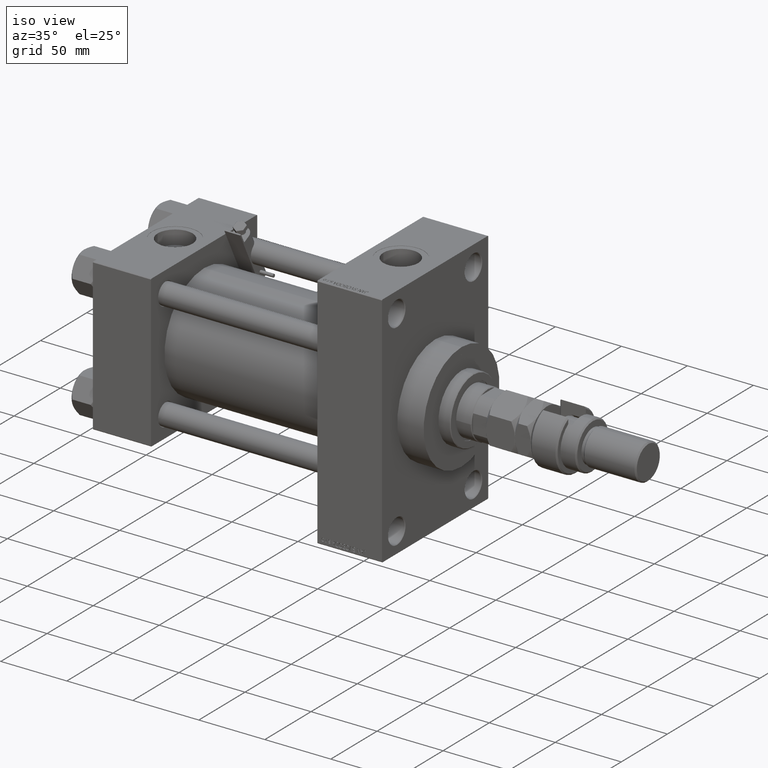
[diagram: clean part render]
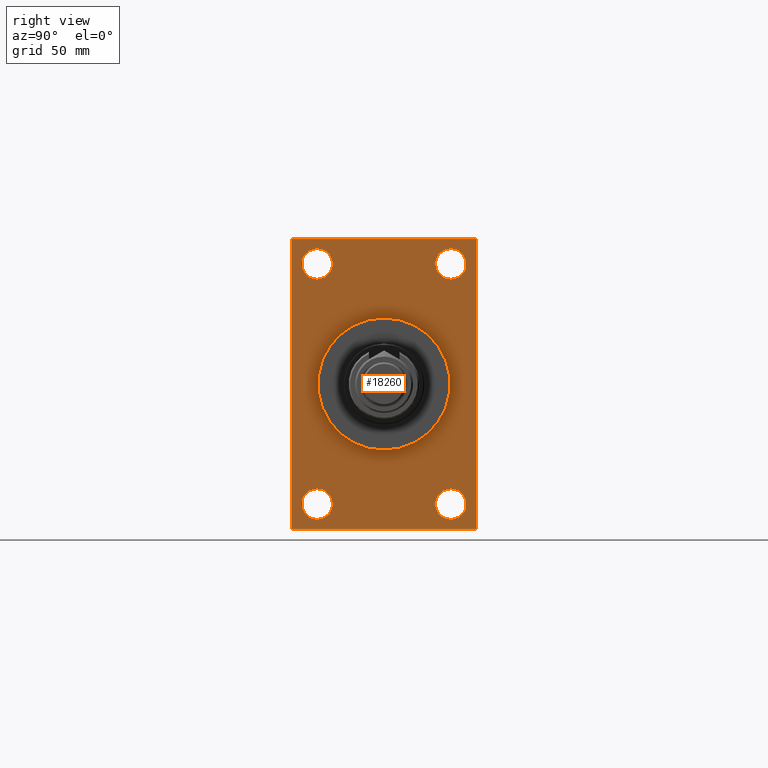
[diagram: tour spotlight — one face highlighted and labeled with its STEP entity id]
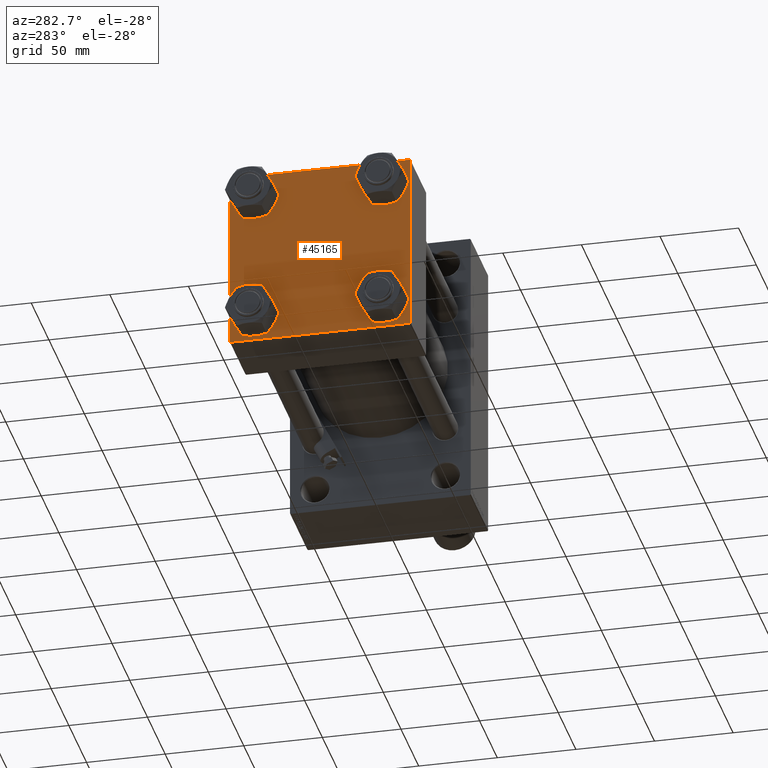
[diagram: tour spotlight — one face highlighted and labeled with its STEP entity id]
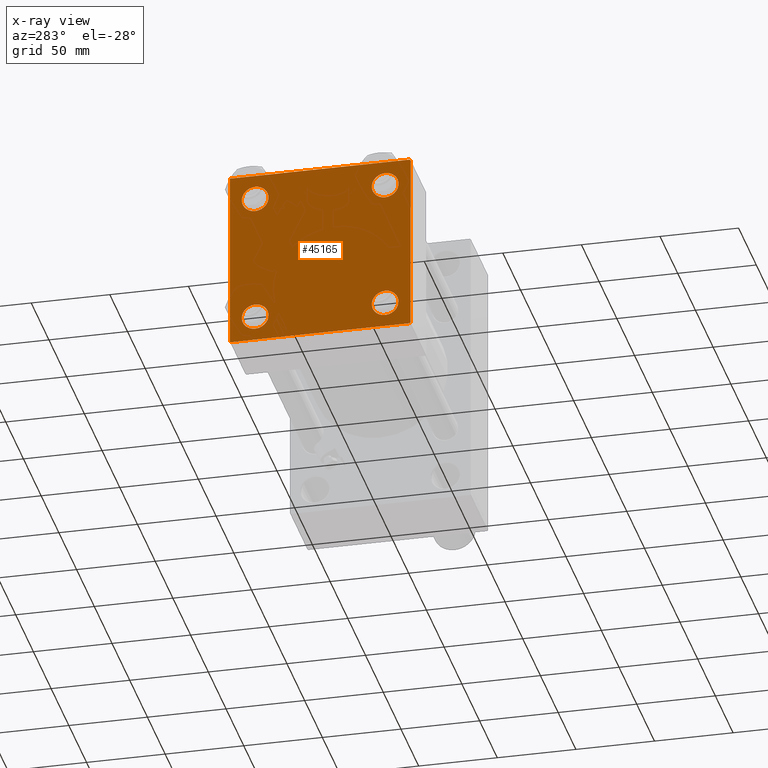
[diagram: x-ray of the same camera — body ghosted, this tour face saturated]
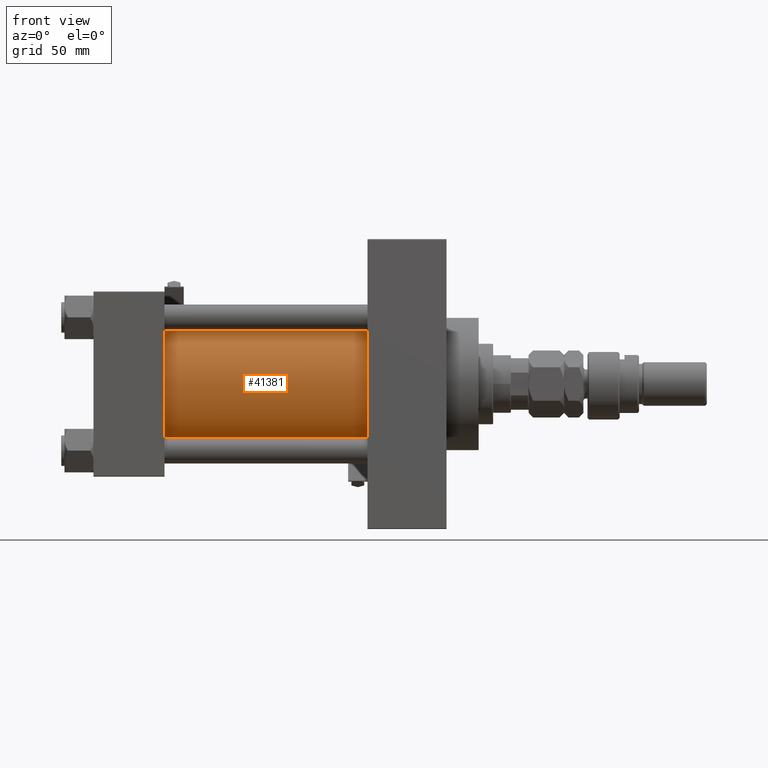
[diagram: tour spotlight — one face highlighted and labeled with its STEP entity id]
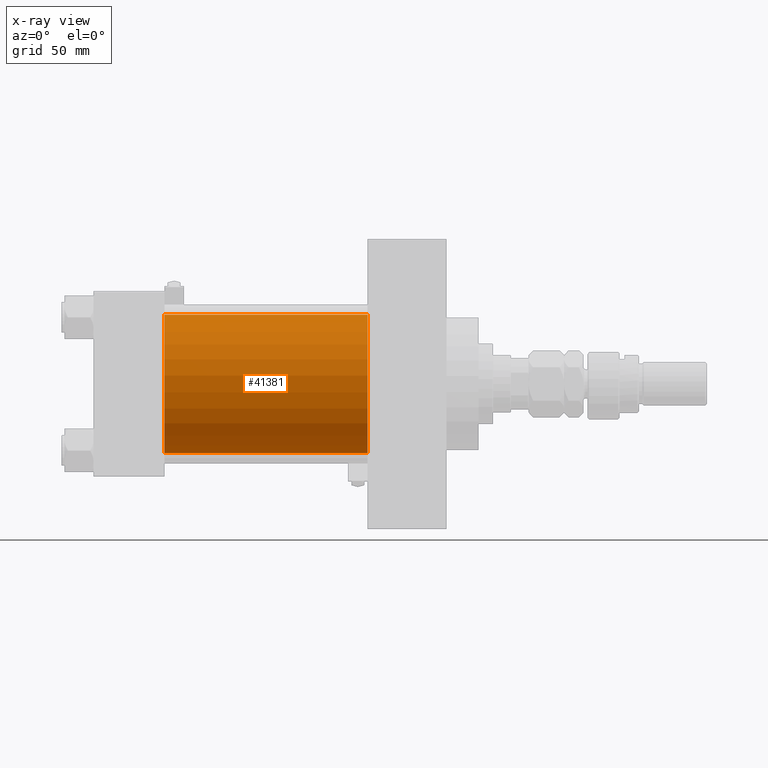
[diagram: x-ray of the same camera — body ghosted, this tour face saturated]
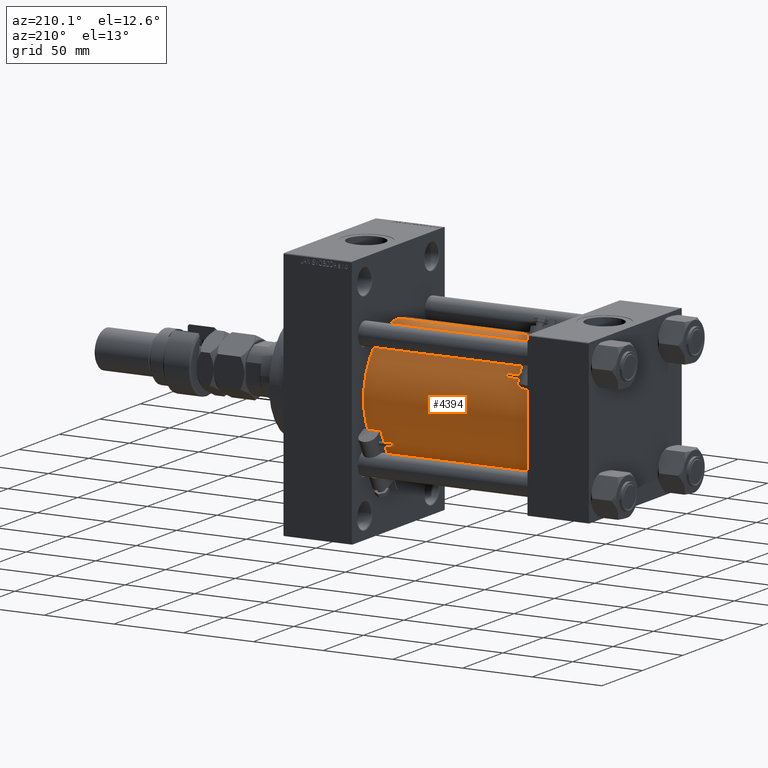
[diagram: tour spotlight — one face highlighted and labeled with its STEP entity id]
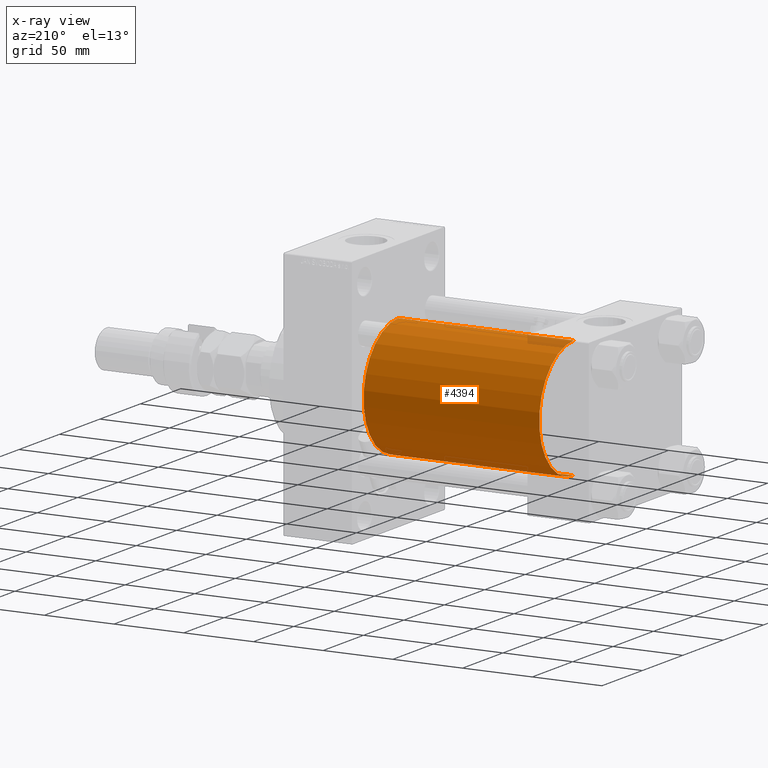
[diagram: x-ray of the same camera — body ghosted, this tour face saturated]
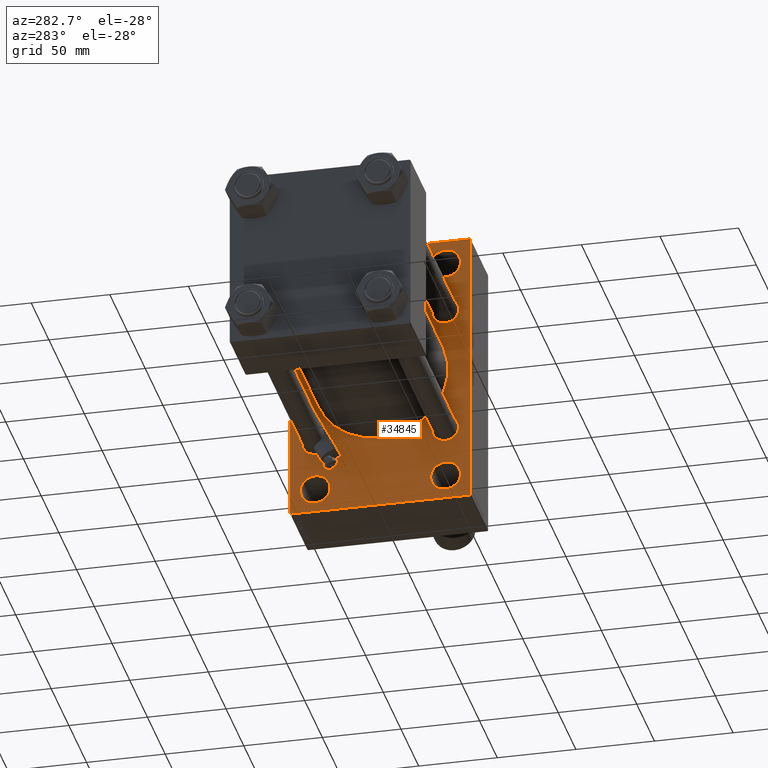
[diagram: tour spotlight — one face highlighted and labeled with its STEP entity id]
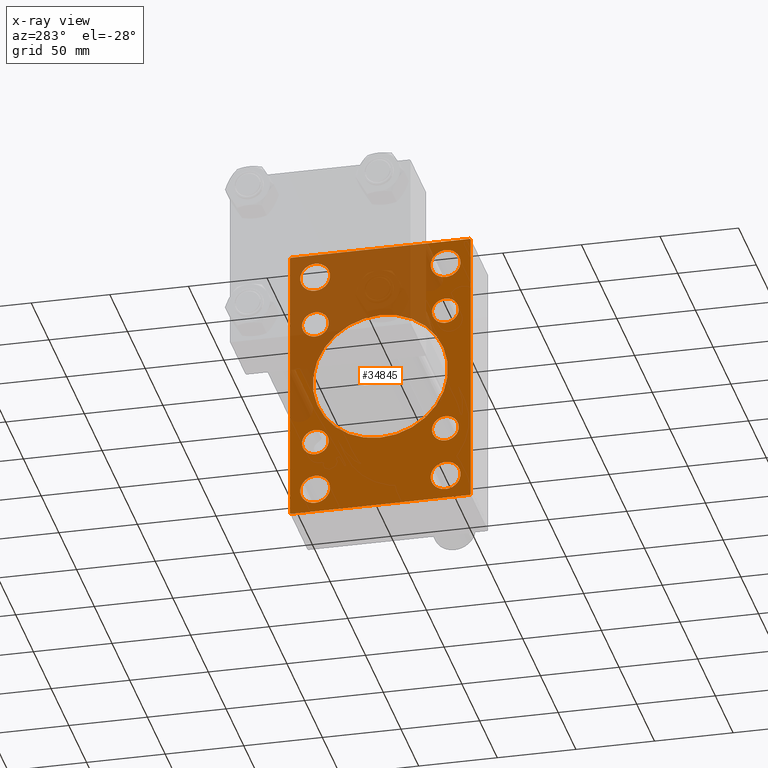
[diagram: x-ray of the same camera — body ghosted, this tour face saturated]
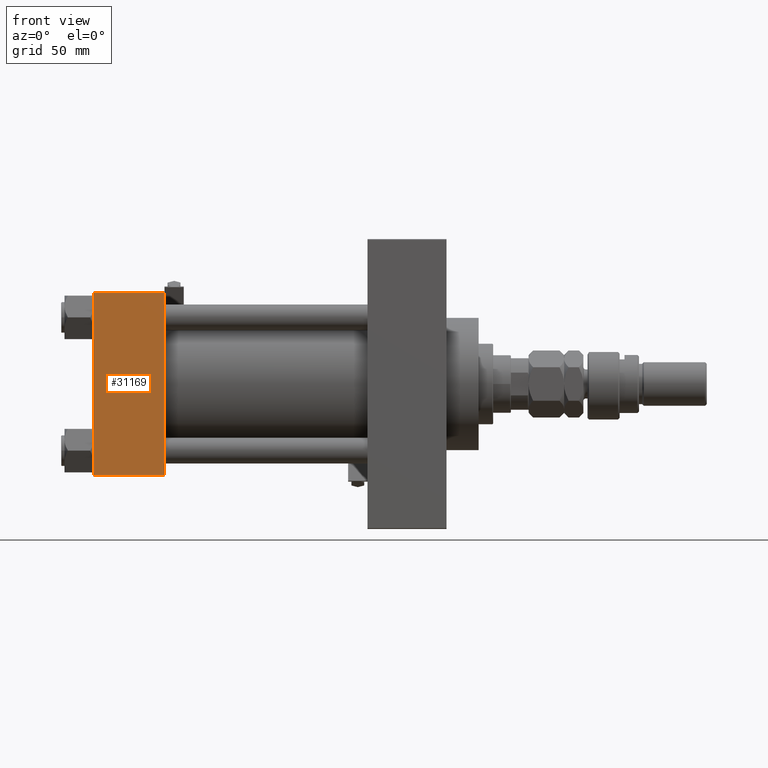
[diagram: tour spotlight — one face highlighted and labeled with its STEP entity id]
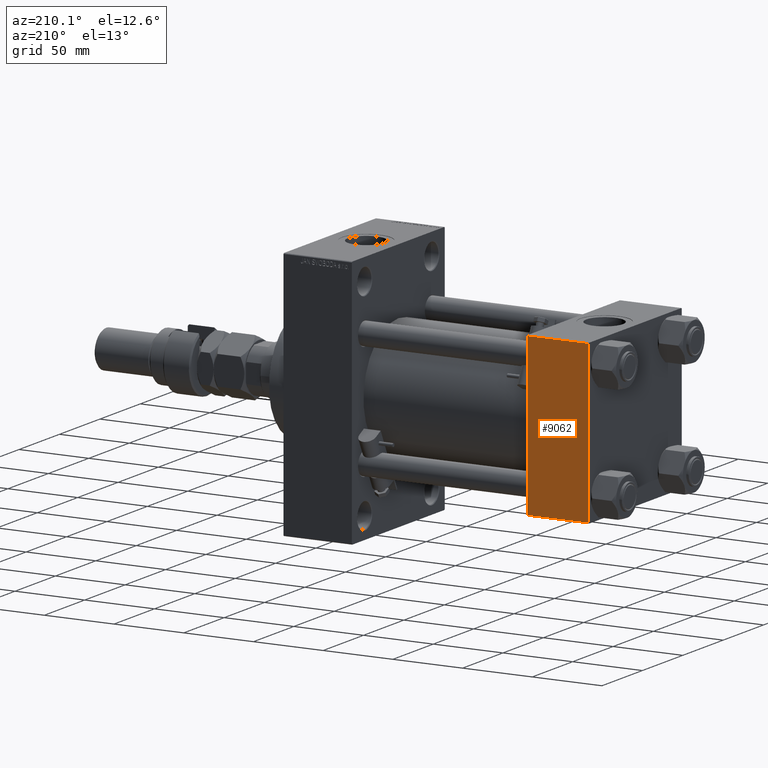
[diagram: tour spotlight — one face highlighted and labeled with its STEP entity id]
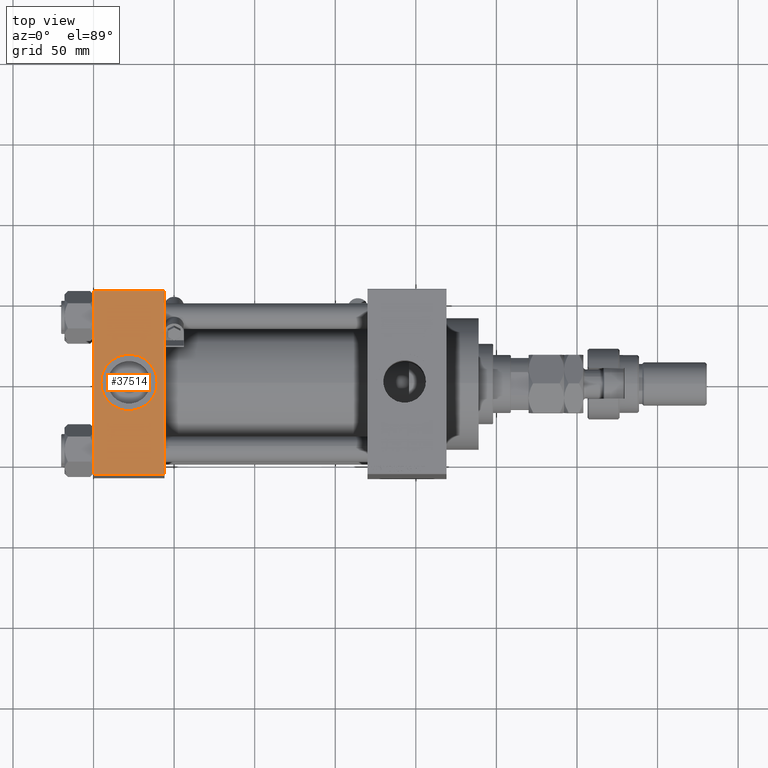
[diagram: tour spotlight — one face highlighted and labeled with its STEP entity id]
A machine part: a face-by-face anatomy tour. The part has 1300 B-rep faces; the first image is the clean iso view, then the 8 largest visible faces are spotlighted one at a time (largest first), each with its STEP entity span.

Face 1 — right view, entity #18260. In plain terms, the highlighted planar face has unit normal (-1, 0, 0).
Definition (entity closure, byte-faithful):
#716 = DIRECTION ( 'NONE',  ( 1.000000000000000000, 0.000000000000000000, 0.000000000000000000 ) ) ;
#783 = EDGE_CURVE ( 'NONE', #22426, #47333, #16519, .T. ) ;
#1021 = AXIS2_PLACEMENT_3D ( 'NONE', #15088, #31009, #38314 ) ;
#1054 = CARTESIAN_POINT ( 'NONE',  ( 218.9999999999999716, 0.000000000000000000, 41.00000000000000000 ) ) ;
#1123 = VECTOR ( 'NONE', #49434, 1000.000000000000000 ) ;
#1298 = AXIS2_PLACEMENT_3D ( 'NONE', #15666, #16184, #48260 ) ;
#1380 = DIRECTION ( 'NONE',  ( 0.000000000000000000, 0.000000000000000000, 1.000000000000000000 ) ) ;
#1490 = DIRECTION ( 'NONE',  ( 0.000000000000000000, 0.000000000000000000, -1.000000000000000000 ) ) ;
#1502 = ORIENTED_EDGE ( 'NONE', *, *, #47250, .T. ) ;
#1534 = LINE ( 'NONE', #17467, #19542 ) ;
#1623 = EDGE_CURVE ( 'NONE', #49710, #17435, #5049, .T. ) ;
#1881 = ORIENTED_EDGE ( 'NONE', *, *, #14552, .T. ) ;
#2171 = CARTESIAN_POINT ( 'NONE',  ( 218.9999999999999716, 0.000000000000000000, 0.000000000000000000 ) ) ;
#3251 = CARTESIAN_POINT ( 'NONE',  ( 218.9999999999999716, 41.50000000000000711, -74.50000000000000000 ) ) ;
#3360 = AXIS2_PLACEMENT_3D ( 'NONE', #45928, #22185, #38094 ) ;
#3479 = VECTOR ( 'NONE', #7129, 1000.000000000000000 ) ;
#3625 = CARTESIAN_POINT ( 'NONE',  ( 218.9999999999999716, -57.50000000000002132, -89.49999999999997158 ) ) ;
#3856 = CARTESIAN_POINT ( 'NONE',  ( 218.9999999999999716, 41.50000000000000711, -83.99999999999990052 ) ) ;
#4020 = AXIS2_PLACEMENT_3D ( 'NONE', #42329, #22503, #38410 ) ;
#4328 = CIRCLE ( 'NONE', #1021, 9.499999999999896971 ) ;
#4508 = EDGE_CURVE ( 'NONE', #49376, #5500, #5863, .T. ) ;
#4569 = DIRECTION ( 'NONE',  ( -1.000000000000000000, 0.000000000000000000, -0.000000000000000000 ) ) ;
#4771 = ORIENTED_EDGE ( 'NONE', *, *, #1623, .F. ) ;
#5049 = LINE ( 'NONE', #24639, #8238 ) ;
#5131 = VERTEX_POINT ( 'NONE', #10758 ) ;
#5500 = VERTEX_POINT ( 'NONE', #37074 ) ;
#5863 = CIRCLE ( 'NONE', #3360, 9.499999999999980460 ) ;
#6790 = VECTOR ( 'NONE', #25794, 999.9999999999998863 ) ;
#6848 = AXIS2_PLACEMENT_3D ( 'NONE', #36982, #35049, #26474 ) ;
#7012 = CARTESIAN_POINT ( 'NONE',  ( 218.9999999999999716, 41.50000000000000711, -65.00000000000009948 ) ) ;
#7129 = DIRECTION ( 'NONE',  ( 0.000000000000000000, -0.7071067811865671127, 0.7071067811865279218 ) ) ;
#7376 = CARTESIAN_POINT ( 'NONE',  ( 218.9999999999999716, 56.99999999999997158, 89.99999999999998579 ) ) ;
#7874 = LINE ( 'NONE', #20148, #29222 ) ;
#8231 = EDGE_CURVE ( 'NONE', #5131, #28747, #48371, .T. ) ;
#8238 = VECTOR ( 'NONE', #39765, 1000.000000000000000 ) ;
#8252 = EDGE_LOOP ( 'NONE', ( #19819, #28020, #4771, #44631, #23601, #1881, #1502, #41414 ) ) ;
#8357 = DIRECTION ( 'NONE',  ( -0.000000000000000000, 0.000000000000000000, 1.000000000000000000 ) ) ;
#8563 = VERTEX_POINT ( 'NONE', #18677 ) ;
#8869 = EDGE_CURVE ( 'NONE', #35566, #13646, #35070, .T. ) ;
#8872 = FACE_BOUND ( 'NONE', #11571, .T. ) ;
#9002 = EDGE_CURVE ( 'NONE', #10835, #21708, #7874, .T. ) ;
#9717 = EDGE_CURVE ( 'NONE', #49710, #19442, #10381, .T. ) ;
#10122 = ORIENTED_EDGE ( 'NONE', *, *, #39445, .T. ) ;
#10188 = CIRCLE ( 'NONE', #6848, 9.499999999999980460 ) ;
#10302 = AXIS2_PLACEMENT_3D ( 'NONE', #17094, #4569, #48659 ) ;
#10381 = LINE ( 'NONE', #33873, #6790 ) ;
#10758 = CARTESIAN_POINT ( 'NONE',  ( 218.9999999999999716, 5.021051876504148963E-15, -41.00000000000000000 ) ) ;
#10835 = VERTEX_POINT ( 'NONE', #13480 ) ;
#11334 = VECTOR ( 'NONE', #31144, 1000.000000000000000 ) ;
#11571 = EDGE_LOOP ( 'NONE', ( #15852, #26229 ) ) ;
#11640 = CIRCLE ( 'NONE', #28333, 41.00000000000000000 ) ;
#12011 = FACE_BOUND ( 'NONE', #25074, .T. ) ;
#12368 = DIRECTION ( 'NONE',  ( 0.000000000000000000, 0.000000000000000000, 1.000000000000000000 ) ) ;
#12525 = FACE_OUTER_BOUND ( 'NONE', #8252, .T. ) ;
#13139 = DIRECTION ( 'NONE',  ( -1.000000000000000000, 0.000000000000000000, -0.000000000000000000 ) ) ;
#13316 = ORIENTED_EDGE ( 'NONE', *, *, #4508, .T. ) ;
#13480 = CARTESIAN_POINT ( 'NONE',  ( 218.9999999999999716, -57.00000000000004263, 89.99999999999997158 ) ) ;
#13646 = VERTEX_POINT ( 'NONE', #3856 ) ;
#14552 = EDGE_CURVE ( 'NONE', #48175, #39034, #38696, .T. ) ;
#14920 = VECTOR ( 'NONE', #48391, 999.9999999999998863 ) ;
#15088 = CARTESIAN_POINT ( 'NONE',  ( 218.9999999999999716, 41.50000000000000711, 74.50000000000001421 ) ) ;
#15245 = EDGE_CURVE ( 'NONE', #47333, #22426, #4328, .T. ) ;
#15666 = CARTESIAN_POINT ( 'NONE',  ( 218.9999999999999716, -41.49999999999999289, 74.50000000000001421 ) ) ;
#15852 = ORIENTED_EDGE ( 'NONE', *, *, #15245, .T. ) ;
#15939 = CARTESIAN_POINT ( 'NONE',  ( 218.9999999999999716, 0.000000000000000000, 0.000000000000000000 ) ) ;
#16184 = DIRECTION ( 'NONE',  ( -1.000000000000000000, 0.000000000000000000, -0.000000000000000000 ) ) ;
#16519 = CIRCLE ( 'NONE', #4020, 9.499999999999896971 ) ;
#17094 = CARTESIAN_POINT ( 'NONE',  ( 218.9999999999999716, -41.49999999999999289, 74.50000000000001421 ) ) ;
#17435 = VERTEX_POINT ( 'NONE', #27039 ) ;
#17467 = CARTESIAN_POINT ( 'NONE',  ( 218.9999999999999716, 57.49999999999997158, 89.99999999999998579 ) ) ;
#18132 = LINE ( 'NONE', #46550, #1123 ) ;
#18260 = ADVANCED_FACE ( 'NONE', ( #32882, #12011, #48270, #8872, #24798, #12525 ), #27940, .F. ) ;
#18264 = ORIENTED_EDGE ( 'NONE', *, *, #50916, .T. ) ;
#18481 = EDGE_CURVE ( 'NONE', #8563, #45610, #18633, .T. ) ;
#18554 = EDGE_CURVE ( 'NONE', #21708, #23765, #18132, .T. ) ;
#18633 = CIRCLE ( 'NONE', #10302, 9.499999999999896971 ) ;
#18645 = LINE ( 'NONE', #26726, #11334 ) ;
#18677 = CARTESIAN_POINT ( 'NONE',  ( 218.9999999999999716, -41.49999999999999289, 83.99999999999991473 ) ) ;
#18810 = CIRCLE ( 'NONE', #24608, 9.499999999999896971 ) ;
#19442 = VERTEX_POINT ( 'NONE', #34095 ) ;
#19536 = CARTESIAN_POINT ( 'NONE',  ( 218.9999999999999716, -57.50000000000002132, 89.50000000000000000 ) ) ;
#19542 = VECTOR ( 'NONE', #29464, 1000.000000000000000 ) ;
#19819 = ORIENTED_EDGE ( 'NONE', *, *, #18554, .T. ) ;
#20148 = CARTESIAN_POINT ( 'NONE',  ( 218.9999999999999716, -57.50000000000002132, 89.50000000000000000 ) ) ;
#21136 = CARTESIAN_POINT ( 'NONE',  ( 218.9999999999999716, 56.99999999999997158, 89.99999999999998579 ) ) ;
#21345 = CARTESIAN_POINT ( 'NONE',  ( 218.9999999999999716, 0.000000000000000000, 0.000000000000000000 ) ) ;
#21708 = VERTEX_POINT ( 'NONE', #19536 ) ;
#22185 = DIRECTION ( 'NONE',  ( -1.000000000000000000, 0.000000000000000000, -0.000000000000000000 ) ) ;
#22426 = VERTEX_POINT ( 'NONE', #35298 ) ;
#22503 = DIRECTION ( 'NONE',  ( -1.000000000000000000, 0.000000000000000000, -0.000000000000000000 ) ) ;
#23601 = ORIENTED_EDGE ( 'NONE', *, *, #51657, .F. ) ;
#23765 = VERTEX_POINT ( 'NONE', #3625 ) ;
#23818 = CIRCLE ( 'NONE', #1298, 9.499999999999896971 ) ;
#24472 = AXIS2_PLACEMENT_3D ( 'NONE', #15939, #35746, #8357 ) ;
#24608 = AXIS2_PLACEMENT_3D ( 'NONE', #3251, #31181, #12368 ) ;
#24639 = CARTESIAN_POINT ( 'NONE',  ( 218.9999999999999716, 57.49999999999997868, -90.00000000000000000 ) ) ;
#24665 = CARTESIAN_POINT ( 'NONE',  ( 218.9999999999999716, -56.99999999999999289, -90.00000000000001421 ) ) ;
#24798 = FACE_BOUND ( 'NONE', #29008, .T. ) ;
#25074 = EDGE_LOOP ( 'NONE', ( #10122, #13316 ) ) ;
#25331 = ORIENTED_EDGE ( 'NONE', *, *, #34988, .F. ) ;
#25794 = DIRECTION ( 'NONE',  ( -0.000000000000000000, 0.7071067811865574537, 0.7071067811865376918 ) ) ;
#26229 = ORIENTED_EDGE ( 'NONE', *, *, #783, .T. ) ;
#26381 = ORIENTED_EDGE ( 'NONE', *, *, #18481, .T. ) ;
#26474 = DIRECTION ( 'NONE',  ( 0.000000000000000000, 0.000000000000000000, 1.000000000000000000 ) ) ;
#26726 = CARTESIAN_POINT ( 'NONE',  ( 218.9999999999999716, 57.49999999999997158, 89.99999999999998579 ) ) ;
#27039 = CARTESIAN_POINT ( 'NONE',  ( 218.9999999999999716, -56.99999999999999289, -90.00000000000001421 ) ) ;
#27940 = PLANE ( 'NONE',  #24472 ) ;
#28020 = ORIENTED_EDGE ( 'NONE', *, *, #33396, .T. ) ;
#28333 = AXIS2_PLACEMENT_3D ( 'NONE', #2171, #37145, #37400 ) ;
#28488 = CARTESIAN_POINT ( 'NONE',  ( 218.9999999999999716, 56.99999999999992895, -90.00000000000000000 ) ) ;
#28747 = VERTEX_POINT ( 'NONE', #1054 ) ;
#29008 = EDGE_LOOP ( 'NONE', ( #25331, #35237 ) ) ;
#29222 = VECTOR ( 'NONE', #51190, 1000.000000000000000 ) ;
#29464 = DIRECTION ( 'NONE',  ( 0.000000000000000000, -1.000000000000000000, -1.206764157201257291E-16 ) ) ;
#31009 = DIRECTION ( 'NONE',  ( -1.000000000000000000, 0.000000000000000000, -0.000000000000000000 ) ) ;
#31144 = DIRECTION ( 'NONE',  ( 0.000000000000000000, 3.854941057726238467E-17, -1.000000000000000000 ) ) ;
#31181 = DIRECTION ( 'NONE',  ( -1.000000000000000000, 0.000000000000000000, -0.000000000000000000 ) ) ;
#31440 = EDGE_LOOP ( 'NONE', ( #36475, #45910 ) ) ;
#31956 = CARTESIAN_POINT ( 'NONE',  ( 218.9999999999999716, -41.49999999999999289, -65.00000000000000000 ) ) ;
#32481 = LINE ( 'NONE', #24665, #14920 ) ;
#32882 = FACE_BOUND ( 'NONE', #40070, .T. ) ;
#32975 = CARTESIAN_POINT ( 'NONE',  ( 218.9999999999999716, 41.50000000000000711, -74.50000000000000000 ) ) ;
#33396 = EDGE_CURVE ( 'NONE', #23765, #17435, #32481, .T. ) ;
#33873 = CARTESIAN_POINT ( 'NONE',  ( 218.9999999999999716, 57.49999999999997868, -89.49999999999995737 ) ) ;
#34095 = CARTESIAN_POINT ( 'NONE',  ( 218.9999999999999716, 57.49999999999997868, -89.49999999999990052 ) ) ;
#34988 = EDGE_CURVE ( 'NONE', #28747, #5131, #11640, .T. ) ;
#35049 = DIRECTION ( 'NONE',  ( -1.000000000000000000, 0.000000000000000000, -0.000000000000000000 ) ) ;
#35070 = CIRCLE ( 'NONE', #45921, 9.499999999999896971 ) ;
#35237 = ORIENTED_EDGE ( 'NONE', *, *, #8231, .F. ) ;
#35298 = CARTESIAN_POINT ( 'NONE',  ( 218.9999999999999716, 41.50000000000000711, 83.99999999999991473 ) ) ;
#35566 = VERTEX_POINT ( 'NONE', #7012 ) ;
#35746 = DIRECTION ( 'NONE',  ( -1.000000000000000000, 0.000000000000000000, -0.000000000000000000 ) ) ;
#36475 = ORIENTED_EDGE ( 'NONE', *, *, #49356, .T. ) ;
#36982 = CARTESIAN_POINT ( 'NONE',  ( 218.9999999999999716, -41.49999999999999289, -74.49999999999998579 ) ) ;
#37074 = CARTESIAN_POINT ( 'NONE',  ( 218.9999999999999716, -41.49999999999999289, -83.99999999999995737 ) ) ;
#37145 = DIRECTION ( 'NONE',  ( 1.000000000000000000, 0.000000000000000000, 0.000000000000000000 ) ) ;
#37195 = CARTESIAN_POINT ( 'NONE',  ( 218.9999999999999716, 57.49999999999997158, 89.50000000000001421 ) ) ;
#37400 = DIRECTION ( 'NONE',  ( 0.000000000000000000, 0.000000000000000000, -1.000000000000000000 ) ) ;
#38094 = DIRECTION ( 'NONE',  ( 0.000000000000000000, 0.000000000000000000, 1.000000000000000000 ) ) ;
#38314 = DIRECTION ( 'NONE',  ( 0.000000000000000000, 0.000000000000000000, 1.000000000000000000 ) ) ;
#38410 = DIRECTION ( 'NONE',  ( 0.000000000000000000, 0.000000000000000000, 1.000000000000000000 ) ) ;
#38696 = LINE ( 'NONE', #7376, #3479 ) ;
#39034 = VERTEX_POINT ( 'NONE', #21136 ) ;
#39445 = EDGE_CURVE ( 'NONE', #5500, #49376, #10188, .T. ) ;
#39765 = DIRECTION ( 'NONE',  ( 0.000000000000000000, -1.000000000000000000, -1.206764157201257045E-16 ) ) ;
#40070 = EDGE_LOOP ( 'NONE', ( #18264, #26381 ) ) ;
#41414 = ORIENTED_EDGE ( 'NONE', *, *, #9002, .T. ) ;
#41713 = AXIS2_PLACEMENT_3D ( 'NONE', #21345, #716, #1490 ) ;
#42240 = CARTESIAN_POINT ( 'NONE',  ( 218.9999999999999716, 41.50000000000000711, 65.00000000000011369 ) ) ;
#42329 = CARTESIAN_POINT ( 'NONE',  ( 218.9999999999999716, 41.50000000000000711, 74.50000000000001421 ) ) ;
#42474 = CARTESIAN_POINT ( 'NONE',  ( 218.9999999999999716, -41.49999999999999289, 65.00000000000011369 ) ) ;
#44631 = ORIENTED_EDGE ( 'NONE', *, *, #9717, .T. ) ;
#45610 = VERTEX_POINT ( 'NONE', #42474 ) ;
#45910 = ORIENTED_EDGE ( 'NONE', *, *, #8869, .T. ) ;
#45921 = AXIS2_PLACEMENT_3D ( 'NONE', #32975, #13139, #1380 ) ;
#45928 = CARTESIAN_POINT ( 'NONE',  ( 218.9999999999999716, -41.49999999999999289, -74.49999999999998579 ) ) ;
#46550 = CARTESIAN_POINT ( 'NONE',  ( 218.9999999999999716, -57.50000000000002132, 89.99999999999997158 ) ) ;
#47250 = EDGE_CURVE ( 'NONE', #39034, #10835, #1534, .T. ) ;
#47333 = VERTEX_POINT ( 'NONE', #42240 ) ;
#48175 = VERTEX_POINT ( 'NONE', #37195 ) ;
#48260 = DIRECTION ( 'NONE',  ( 0.000000000000000000, 0.000000000000000000, 1.000000000000000000 ) ) ;
#48270 = FACE_BOUND ( 'NONE', #31440, .T. ) ;
#48371 = CIRCLE ( 'NONE', #41713, 41.00000000000000000 ) ;
#48391 = DIRECTION ( 'NONE',  ( 0.000000000000000000, 0.7071067811865771047, -0.7071067811865180408 ) ) ;
#48659 = DIRECTION ( 'NONE',  ( 0.000000000000000000, 0.000000000000000000, 1.000000000000000000 ) ) ;
#49356 = EDGE_CURVE ( 'NONE', #13646, #35566, #18810, .T. ) ;
#49376 = VERTEX_POINT ( 'NONE', #31956 ) ;
#49434 = DIRECTION ( 'NONE',  ( 0.000000000000000000, 0.000000000000000000, -1.000000000000000000 ) ) ;
#49710 = VERTEX_POINT ( 'NONE', #28488 ) ;
#50916 = EDGE_CURVE ( 'NONE', #45610, #8563, #23818, .T. ) ;
#51190 = DIRECTION ( 'NONE',  ( -0.000000000000000000, -0.7071067811865524577, -0.7071067811865426878 ) ) ;
#51657 = EDGE_CURVE ( 'NONE', #48175, #19442, #18645, .T. ) ;

Face 2 — auxiliary view, entity #45165. An x-ray twin of the same camera follows (body ghosted, this face saturated) — the face is partly hidden behind the body. In plain terms, the highlighted planar face has unit normal (-1, 0, 0).
Definition (entity closure, byte-faithful):
#490 = DIRECTION ( 'NONE',  ( 0.000000000000000000, 0.000000000000000000, 1.000000000000000000 ) ) ;
#762 = CARTESIAN_POINT ( 'NONE',  ( 0.000000000000000000, 57.49999999999999289, -57.49999999999999289 ) ) ;
#1517 = CARTESIAN_POINT ( 'NONE',  ( 0.000000000000000000, 41.34999999999999432, -41.35000000000000142 ) ) ;
#1682 = LINE ( 'NONE', #16842, #47726 ) ;
#2063 = DIRECTION ( 'NONE',  ( 0.000000000000000000, 0.000000000000000000, 1.000000000000000000 ) ) ;
#2454 = LINE ( 'NONE', #13945, #36978 ) ;
#2523 = VERTEX_POINT ( 'NONE', #8816 ) ;
#2802 = EDGE_LOOP ( 'NONE', ( #17625, #28028 ) ) ;
#3857 = EDGE_CURVE ( 'NONE', #28475, #16651, #29093, .T. ) ;
#4396 = AXIS2_PLACEMENT_3D ( 'NONE', #40267, #17295, #21215 ) ;
#4632 = VECTOR ( 'NONE', #19785, 1000.000000000000114 ) ;
#5114 = ORIENTED_EDGE ( 'NONE', *, *, #10489, .T. ) ;
#5294 = FACE_BOUND ( 'NONE', #33237, .T. ) ;
#5534 = DIRECTION ( 'NONE',  ( 1.000000000000000000, -0.000000000000000000, 0.000000000000000000 ) ) ;
#5734 = VERTEX_POINT ( 'NONE', #29032 ) ;
#6688 = DIRECTION ( 'NONE',  ( 0.000000000000000000, 0.000000000000000000, -1.000000000000000000 ) ) ;
#6708 = CIRCLE ( 'NONE', #34177, 8.499999999999992895 ) ;
#6957 = CARTESIAN_POINT ( 'NONE',  ( 0.000000000000000000, 57.49999999999999289, 57.00000000000003553 ) ) ;
#6972 = EDGE_LOOP ( 'NONE', ( #33013, #31729, #23008, #19952, #22567, #46042, #25699, #10268 ) ) ;
#7484 = CARTESIAN_POINT ( 'NONE',  ( 0.000000000000000000, -41.34999999999998721, -49.85000000000000853 ) ) ;
#7674 = DIRECTION ( 'NONE',  ( 1.000000000000000000, -0.000000000000000000, 0.000000000000000000 ) ) ;
#7723 = CIRCLE ( 'NONE', #22709, 8.499999999999992895 ) ;
#8728 = AXIS2_PLACEMENT_3D ( 'NONE', #27578, #36684, #32777 ) ;
#8816 = CARTESIAN_POINT ( 'NONE',  ( 0.000000000000000000, -41.34999999999998721, 32.85000000000001563 ) ) ;
#9034 = DIRECTION ( 'NONE',  ( 0.000000000000000000, 0.000000000000000000, 1.000000000000000000 ) ) ;
#9085 = VERTEX_POINT ( 'NONE', #43880 ) ;
#10098 = VERTEX_POINT ( 'NONE', #47807 ) ;
#10131 = LINE ( 'NONE', #41959, #25459 ) ;
#10268 = ORIENTED_EDGE ( 'NONE', *, *, #3857, .T. ) ;
#10338 = CARTESIAN_POINT ( 'NONE',  ( 0.000000000000000000, 41.34999999999999432, -32.85000000000000853 ) ) ;
#10489 = EDGE_CURVE ( 'NONE', #2523, #41643, #6708, .T. ) ;
#11778 = CARTESIAN_POINT ( 'NONE',  ( 0.000000000000000000, -57.50000000000000711, 57.00000000000000711 ) ) ;
#13489 = LINE ( 'NONE', #48717, #17039 ) ;
#13509 = AXIS2_PLACEMENT_3D ( 'NONE', #21903, #46162, #2063 ) ;
#13945 = CARTESIAN_POINT ( 'NONE',  ( 0.000000000000000000, -57.50000000000000711, 57.49999999999999289 ) ) ;
#15251 = CARTESIAN_POINT ( 'NONE',  ( 0.000000000000000000, -41.34999999999998721, -41.35000000000000853 ) ) ;
#15278 = CARTESIAN_POINT ( 'NONE',  ( 0.000000000000000000, 57.49999999999999289, 57.50000000000000711 ) ) ;
#16188 = LINE ( 'NONE', #762, #23373 ) ;
#16651 = VERTEX_POINT ( 'NONE', #6957 ) ;
#16842 = CARTESIAN_POINT ( 'NONE',  ( 0.000000000000000000, 57.49999999999999289, 57.50000000000000711 ) ) ;
#17039 = VECTOR ( 'NONE', #21324, 1000.000000000000114 ) ;
#17040 = FACE_BOUND ( 'NONE', #2802, .T. ) ;
#17109 = VERTEX_POINT ( 'NONE', #22411 ) ;
#17130 = DIRECTION ( 'NONE',  ( 1.000000000000000000, -0.000000000000000000, 0.000000000000000000 ) ) ;
#17295 = DIRECTION ( 'NONE',  ( -1.000000000000000000, 0.000000000000000000, -0.000000000000000000 ) ) ;
#17625 = ORIENTED_EDGE ( 'NONE', *, *, #28402, .T. ) ;
#17872 = DIRECTION ( 'NONE',  ( 0.000000000000000000, 0.000000000000000000, -1.000000000000000000 ) ) ;
#18087 = ORIENTED_EDGE ( 'NONE', *, *, #27559, .T. ) ;
#18113 = EDGE_LOOP ( 'NONE', ( #37950, #18087 ) ) ;
#18410 = CARTESIAN_POINT ( 'NONE',  ( 0.000000000000000000, 57.49999999999999289, -57.00000000000000711 ) ) ;
#18595 = CARTESIAN_POINT ( 'NONE',  ( 0.000000000000000000, -57.50000000000000711, -57.00000000000000711 ) ) ;
#18620 = EDGE_CURVE ( 'NONE', #40912, #45261, #2454, .T. ) ;
#19592 = DIRECTION ( 'NONE',  ( 0.000000000000000000, -1.000000000000000000, -1.206764157201257045E-16 ) ) ;
#19785 = DIRECTION ( 'NONE',  ( 0.000000000000000000, -0.7071067811865474617, 0.7071067811865474617 ) ) ;
#19952 = ORIENTED_EDGE ( 'NONE', *, *, #51117, .T. ) ;
#20462 = CARTESIAN_POINT ( 'NONE',  ( 0.000000000000000000, 57.00000000000000711, 57.50000000000000711 ) ) ;
#20747 = VERTEX_POINT ( 'NONE', #39083 ) ;
#21215 = DIRECTION ( 'NONE',  ( -0.000000000000000000, 0.000000000000000000, 1.000000000000000000 ) ) ;
#21280 = DIRECTION ( 'NONE',  ( 0.000000000000000000, 0.7071067811865573427, -0.7071067811865376918 ) ) ;
#21324 = DIRECTION ( 'NONE',  ( -0.000000000000000000, 0.7071067811865376918, 0.7071067811865573427 ) ) ;
#21692 = VECTOR ( 'NONE', #21280, 1000.000000000000114 ) ;
#21903 = CARTESIAN_POINT ( 'NONE',  ( 0.000000000000000000, 41.34999999999999432, -41.35000000000000142 ) ) ;
#22137 = DIRECTION ( 'NONE',  ( -0.000000000000000000, -0.7071067811865376918, -0.7071067811865573427 ) ) ;
#22411 = CARTESIAN_POINT ( 'NONE',  ( 0.000000000000000000, 41.34999999999999432, 32.85000000000000853 ) ) ;
#22567 = ORIENTED_EDGE ( 'NONE', *, *, #18620, .F. ) ;
#22709 = AXIS2_PLACEMENT_3D ( 'NONE', #47375, #35621, #51546 ) ;
#22944 = CIRCLE ( 'NONE', #37935, 8.499999999999992895 ) ;
#23008 = ORIENTED_EDGE ( 'NONE', *, *, #36219, .T. ) ;
#23373 = VECTOR ( 'NONE', #19592, 1000.000000000000000 ) ;
#24470 = LINE ( 'NONE', #28382, #4632 ) ;
#24680 = DIRECTION ( 'NONE',  ( 0.000000000000000000, -1.000000000000000000, -1.206764157201257045E-16 ) ) ;
#25016 = EDGE_CURVE ( 'NONE', #9085, #17109, #22944, .T. ) ;
#25459 = VECTOR ( 'NONE', #22137, 1000.000000000000114 ) ;
#25540 = AXIS2_PLACEMENT_3D ( 'NONE', #41023, #5534, #29013 ) ;
#25699 = ORIENTED_EDGE ( 'NONE', *, *, #44877, .F. ) ;
#26437 = CIRCLE ( 'NONE', #27290, 8.499999999999992895 ) ;
#27290 = AXIS2_PLACEMENT_3D ( 'NONE', #1517, #29449, #40165 ) ;
#27559 = EDGE_CURVE ( 'NONE', #17109, #9085, #39674, .T. ) ;
#27578 = CARTESIAN_POINT ( 'NONE',  ( 0.000000000000000000, -41.34999999999998721, -41.35000000000000853 ) ) ;
#27638 = EDGE_LOOP ( 'NONE', ( #35069, #5114 ) ) ;
#28028 = ORIENTED_EDGE ( 'NONE', *, *, #49040, .T. ) ;
#28033 = AXIS2_PLACEMENT_3D ( 'NONE', #15251, #7674, #48112 ) ;
#28382 = CARTESIAN_POINT ( 'NONE',  ( 0.000000000000000000, -57.25000000000000711, -57.25000000000000711 ) ) ;
#28402 = EDGE_CURVE ( 'NONE', #34813, #48858, #48878, .T. ) ;
#28475 = VERTEX_POINT ( 'NONE', #20462 ) ;
#28965 = ORIENTED_EDGE ( 'NONE', *, *, #39231, .T. ) ;
#29013 = DIRECTION ( 'NONE',  ( 0.000000000000000000, 0.000000000000000000, 1.000000000000000000 ) ) ;
#29032 = CARTESIAN_POINT ( 'NONE',  ( 0.000000000000000000, -57.00000000000000711, -57.50000000000000711 ) ) ;
#29093 = LINE ( 'NONE', #36413, #21692 ) ;
#29449 = DIRECTION ( 'NONE',  ( 1.000000000000000000, -0.000000000000000000, 0.000000000000000000 ) ) ;
#29826 = EDGE_CURVE ( 'NONE', #33256, #45915, #26437, .T. ) ;
#31231 = CIRCLE ( 'NONE', #8728, 8.499999999999992895 ) ;
#31729 = ORIENTED_EDGE ( 'NONE', *, *, #49823, .T. ) ;
#32435 = FACE_OUTER_BOUND ( 'NONE', #6972, .T. ) ;
#32451 = CARTESIAN_POINT ( 'NONE',  ( 0.000000000000000000, -41.34999999999998721, 49.85000000000000853 ) ) ;
#32777 = DIRECTION ( 'NONE',  ( 0.000000000000000000, 0.000000000000000000, 1.000000000000000000 ) ) ;
#32959 = PLANE ( 'NONE',  #4396 ) ;
#33013 = ORIENTED_EDGE ( 'NONE', *, *, #38335, .T. ) ;
#33237 = EDGE_LOOP ( 'NONE', ( #36874, #28965 ) ) ;
#33256 = VERTEX_POINT ( 'NONE', #10338 ) ;
#33461 = FACE_BOUND ( 'NONE', #27638, .T. ) ;
#34177 = AXIS2_PLACEMENT_3D ( 'NONE', #49279, #40947, #490 ) ;
#34813 = VERTEX_POINT ( 'NONE', #38495 ) ;
#35069 = ORIENTED_EDGE ( 'NONE', *, *, #43744, .T. ) ;
#35621 = DIRECTION ( 'NONE',  ( 1.000000000000000000, -0.000000000000000000, 0.000000000000000000 ) ) ;
#36219 = EDGE_CURVE ( 'NONE', #10098, #5734, #16188, .T. ) ;
#36413 = CARTESIAN_POINT ( 'NONE',  ( 0.000000000000000000, 57.24999999999922551, 57.25000000000081712 ) ) ;
#36684 = DIRECTION ( 'NONE',  ( 1.000000000000000000, -0.000000000000000000, 0.000000000000000000 ) ) ;
#36695 = CARTESIAN_POINT ( 'NONE',  ( 0.000000000000000000, 41.34999999999999432, 41.35000000000000142 ) ) ;
#36874 = ORIENTED_EDGE ( 'NONE', *, *, #29826, .T. ) ;
#36978 = VECTOR ( 'NONE', #17872, 1000.000000000000000 ) ;
#37935 = AXIS2_PLACEMENT_3D ( 'NONE', #36695, #17130, #9034 ) ;
#37950 = ORIENTED_EDGE ( 'NONE', *, *, #25016, .T. ) ;
#38335 = EDGE_CURVE ( 'NONE', #16651, #40539, #50252, .T. ) ;
#38495 = CARTESIAN_POINT ( 'NONE',  ( 0.000000000000000000, -41.34999999999998721, -32.85000000000001563 ) ) ;
#38497 = CIRCLE ( 'NONE', #13509, 8.499999999999992895 ) ;
#39083 = CARTESIAN_POINT ( 'NONE',  ( 0.000000000000000000, -57.00000000000003553, 57.49999999999999289 ) ) ;
#39231 = EDGE_CURVE ( 'NONE', #45915, #33256, #38497, .T. ) ;
#39674 = CIRCLE ( 'NONE', #25540, 8.499999999999992895 ) ;
#40165 = DIRECTION ( 'NONE',  ( 0.000000000000000000, 0.000000000000000000, 1.000000000000000000 ) ) ;
#40267 = CARTESIAN_POINT ( 'NONE',  ( 0.000000000000000000, 0.000000000000000000, 0.000000000000000000 ) ) ;
#40539 = VERTEX_POINT ( 'NONE', #18410 ) ;
#40783 = FACE_BOUND ( 'NONE', #18113, .T. ) ;
#40912 = VERTEX_POINT ( 'NONE', #11778 ) ;
#40947 = DIRECTION ( 'NONE',  ( 1.000000000000000000, -0.000000000000000000, 0.000000000000000000 ) ) ;
#41023 = CARTESIAN_POINT ( 'NONE',  ( 0.000000000000000000, 41.34999999999999432, 41.35000000000000142 ) ) ;
#41643 = VERTEX_POINT ( 'NONE', #32451 ) ;
#41959 = CARTESIAN_POINT ( 'NONE',  ( 0.000000000000000000, 57.25000000000081712, -57.24999999999922551 ) ) ;
#42870 = CARTESIAN_POINT ( 'NONE',  ( 0.000000000000000000, 41.34999999999999432, -49.85000000000000142 ) ) ;
#43744 = EDGE_CURVE ( 'NONE', #41643, #2523, #7723, .T. ) ;
#43880 = CARTESIAN_POINT ( 'NONE',  ( 0.000000000000000000, 41.34999999999999432, 49.85000000000000142 ) ) ;
#44877 = EDGE_CURVE ( 'NONE', #28475, #20747, #1682, .T. ) ;
#45165 = ADVANCED_FACE ( 'NONE', ( #33461, #17040, #5294, #40783, #32435 ), #32959, .T. ) ;
#45261 = VERTEX_POINT ( 'NONE', #18595 ) ;
#45915 = VERTEX_POINT ( 'NONE', #42870 ) ;
#46042 = ORIENTED_EDGE ( 'NONE', *, *, #47450, .T. ) ;
#46162 = DIRECTION ( 'NONE',  ( 1.000000000000000000, -0.000000000000000000, 0.000000000000000000 ) ) ;
#47375 = CARTESIAN_POINT ( 'NONE',  ( 0.000000000000000000, -41.34999999999998721, 41.35000000000000853 ) ) ;
#47450 = EDGE_CURVE ( 'NONE', #40912, #20747, #13489, .T. ) ;
#47726 = VECTOR ( 'NONE', #24680, 1000.000000000000000 ) ;
#47807 = CARTESIAN_POINT ( 'NONE',  ( 0.000000000000000000, 57.00000000000002132, -57.49999999999999289 ) ) ;
#48112 = DIRECTION ( 'NONE',  ( 0.000000000000000000, 0.000000000000000000, 1.000000000000000000 ) ) ;
#48717 = CARTESIAN_POINT ( 'NONE',  ( -0.000000000000000000, -57.25000000000081712, 57.24999999999922551 ) ) ;
#48858 = VERTEX_POINT ( 'NONE', #7484 ) ;
#48878 = CIRCLE ( 'NONE', #28033, 8.499999999999992895 ) ;
#49040 = EDGE_CURVE ( 'NONE', #48858, #34813, #31231, .T. ) ;
#49279 = CARTESIAN_POINT ( 'NONE',  ( 0.000000000000000000, -41.34999999999998721, 41.35000000000000853 ) ) ;
#49823 = EDGE_CURVE ( 'NONE', #40539, #10098, #10131, .T. ) ;
#50152 = VECTOR ( 'NONE', #6688, 1000.000000000000000 ) ;
#50252 = LINE ( 'NONE', #15278, #50152 ) ;
#51117 = EDGE_CURVE ( 'NONE', #5734, #45261, #24470, .T. ) ;
#51546 = DIRECTION ( 'NONE',  ( 0.000000000000000000, 0.000000000000000000, 1.000000000000000000 ) ) ;

Face 3 — front view, entity #41381. An x-ray twin of the same camera follows (body ghosted, this face saturated) — the face is partly hidden behind the body. In plain terms, the highlighted cylindrical surface (partial cylindrical patch) has radius 43 mm, axis along (-1, -0, -0).
Definition (entity closure, byte-faithful):
#922 = CARTESIAN_POINT ( 'NONE',  ( 169.9999999999999716, -2.602085213965210642E-15, 0.000000000000000000 ) ) ;
#1176 = DIRECTION ( 'NONE',  ( -1.000000000000000000, -0.000000000000000000, -0.000000000000000000 ) ) ;
#1597 = CARTESIAN_POINT ( 'NONE',  ( 43.99999999999998579, 2.663896022368408223E-15, -43.00000000000000000 ) ) ;
#3510 = VECTOR ( 'NONE', #51611, 1000.000000000000000 ) ;
#4845 = FACE_OUTER_BOUND ( 'NONE', #27004, .T. ) ;
#6056 = VECTOR ( 'NONE', #49310, 1000.000000000000000 ) ;
#8364 = DIRECTION ( 'NONE',  ( 1.000000000000000000, 0.000000000000000000, 0.000000000000000000 ) ) ;
#8747 = CARTESIAN_POINT ( 'NONE',  ( 169.9999999999999716, 2.663896022368408223E-15, -43.00000000000000000 ) ) ;
#9625 = CIRCLE ( 'NONE', #36281, 43.00000000000000000 ) ;
#11693 = CARTESIAN_POINT ( 'NONE',  ( 169.9999999999999716, 2.663896022368408223E-15, -43.00000000000000000 ) ) ;
#13115 = ORIENTED_EDGE ( 'NONE', *, *, #50830, .T. ) ;
#16041 = AXIS2_PLACEMENT_3D ( 'NONE', #39673, #8364, #40195 ) ;
#17113 = DIRECTION ( 'NONE',  ( 0.000000000000000000, 0.000000000000000000, 1.000000000000000000 ) ) ;
#17719 = CIRCLE ( 'NONE', #16041, 43.00000000000000000 ) ;
#20775 = CYLINDRICAL_SURFACE ( 'NONE', #42759, 43.00000000000000000 ) ;
#24677 = VERTEX_POINT ( 'NONE', #48244 ) ;
#27004 = EDGE_LOOP ( 'NONE', ( #28700, #48780, #44120, #13115 ) ) ;
#27525 = VERTEX_POINT ( 'NONE', #1597 ) ;
#28700 = ORIENTED_EDGE ( 'NONE', *, *, #39270, .F. ) ;
#29998 = LINE ( 'NONE', #45137, #6056 ) ;
#31555 = VERTEX_POINT ( 'NONE', #47998 ) ;
#31748 = DIRECTION ( 'NONE',  ( 1.000000000000000000, -0.000000000000000000, 0.000000000000000000 ) ) ;
#35637 = CARTESIAN_POINT ( 'NONE',  ( 43.99999999999998579, -2.602085213965210642E-15, 0.000000000000000000 ) ) ;
#36281 = AXIS2_PLACEMENT_3D ( 'NONE', #35637, #31748, #44001 ) ;
#39270 = EDGE_CURVE ( 'NONE', #43851, #27525, #43528, .T. ) ;
#39673 = CARTESIAN_POINT ( 'NONE',  ( 169.9999999999999716, -2.602085213965210642E-15, 0.000000000000000000 ) ) ;
#40195 = DIRECTION ( 'NONE',  ( 0.000000000000000000, 0.000000000000000000, -1.000000000000000000 ) ) ;
#41381 = ADVANCED_FACE ( 'NONE', ( #4845 ), #20775, .T. ) ;
#42759 = AXIS2_PLACEMENT_3D ( 'NONE', #922, #1176, #17113 ) ;
#43528 = LINE ( 'NONE', #11693, #3510 ) ;
#43851 = VERTEX_POINT ( 'NONE', #8747 ) ;
#44001 = DIRECTION ( 'NONE',  ( 0.000000000000000000, 0.000000000000000000, 1.000000000000000000 ) ) ;
#44110 = EDGE_CURVE ( 'NONE', #31555, #43851, #17719, .T. ) ;
#44120 = ORIENTED_EDGE ( 'NONE', *, *, #44233, .T. ) ;
#44233 = EDGE_CURVE ( 'NONE', #31555, #24677, #29998, .T. ) ;
#45137 = CARTESIAN_POINT ( 'NONE',  ( 169.9999999999999716, -2.602085213965210642E-15, 43.00000000000000000 ) ) ;
#47998 = CARTESIAN_POINT ( 'NONE',  ( 169.9999999999999716, -2.602085213965210642E-15, 43.00000000000000000 ) ) ;
#48244 = CARTESIAN_POINT ( 'NONE',  ( 43.99999999999998579, -2.602085213965210642E-15, 43.00000000000000000 ) ) ;
#48780 = ORIENTED_EDGE ( 'NONE', *, *, #44110, .F. ) ;
#49310 = DIRECTION ( 'NONE',  ( -1.000000000000000000, -0.000000000000000000, -0.000000000000000000 ) ) ;
#50830 = EDGE_CURVE ( 'NONE', #24677, #27525, #9625, .T. ) ;
#51611 = DIRECTION ( 'NONE',  ( -1.000000000000000000, -0.000000000000000000, -0.000000000000000000 ) ) ;

Face 4 — auxiliary view, entity #4394. An x-ray twin of the same camera follows (body ghosted, this face saturated) — the face is partly hidden behind the body. In plain terms, the highlighted cylindrical surface (partial cylindrical patch) has radius 43 mm, axis along (-1, -0, -0).
Definition (entity closure, byte-faithful):
#1047 = DIRECTION ( 'NONE',  ( 0.000000000000000000, 0.000000000000000000, 1.000000000000000000 ) ) ;
#1597 = CARTESIAN_POINT ( 'NONE',  ( 43.99999999999998579, 2.663896022368408223E-15, -43.00000000000000000 ) ) ;
#3510 = VECTOR ( 'NONE', #51611, 1000.000000000000000 ) ;
#4394 = ADVANCED_FACE ( 'NONE', ( #32377 ), #49059, .T. ) ;
#6056 = VECTOR ( 'NONE', #49310, 1000.000000000000000 ) ;
#8747 = CARTESIAN_POINT ( 'NONE',  ( 169.9999999999999716, 2.663896022368408223E-15, -43.00000000000000000 ) ) ;
#11693 = CARTESIAN_POINT ( 'NONE',  ( 169.9999999999999716, 2.663896022368408223E-15, -43.00000000000000000 ) ) ;
#12569 = DIRECTION ( 'NONE',  ( 1.000000000000000000, -0.000000000000000000, 0.000000000000000000 ) ) ;
#13319 = CARTESIAN_POINT ( 'NONE',  ( 169.9999999999999716, -2.602085213965210642E-15, 0.000000000000000000 ) ) ;
#13737 = ORIENTED_EDGE ( 'NONE', *, *, #39270, .T. ) ;
#16747 = DIRECTION ( 'NONE',  ( 0.000000000000000000, 0.000000000000000000, 1.000000000000000000 ) ) ;
#19267 = EDGE_CURVE ( 'NONE', #43851, #31555, #33651, .T. ) ;
#20697 = ORIENTED_EDGE ( 'NONE', *, *, #44233, .F. ) ;
#22948 = DIRECTION ( 'NONE',  ( 0.000000000000000000, 0.000000000000000000, -1.000000000000000000 ) ) ;
#23705 = DIRECTION ( 'NONE',  ( 1.000000000000000000, 0.000000000000000000, 0.000000000000000000 ) ) ;
#23962 = ORIENTED_EDGE ( 'NONE', *, *, #35210, .T. ) ;
#24677 = VERTEX_POINT ( 'NONE', #48244 ) ;
#27392 = EDGE_LOOP ( 'NONE', ( #48390, #13737, #23962, #20697 ) ) ;
#27525 = VERTEX_POINT ( 'NONE', #1597 ) ;
#29998 = LINE ( 'NONE', #45137, #6056 ) ;
#31555 = VERTEX_POINT ( 'NONE', #47998 ) ;
#32377 = FACE_OUTER_BOUND ( 'NONE', #27392, .T. ) ;
#33651 = CIRCLE ( 'NONE', #39494, 43.00000000000000000 ) ;
#35210 = EDGE_CURVE ( 'NONE', #27525, #24677, #49969, .T. ) ;
#38318 = AXIS2_PLACEMENT_3D ( 'NONE', #48312, #12569, #16747 ) ;
#39270 = EDGE_CURVE ( 'NONE', #43851, #27525, #43528, .T. ) ;
#39494 = AXIS2_PLACEMENT_3D ( 'NONE', #46434, #23705, #22948 ) ;
#43528 = LINE ( 'NONE', #11693, #3510 ) ;
#43851 = VERTEX_POINT ( 'NONE', #8747 ) ;
#44233 = EDGE_CURVE ( 'NONE', #31555, #24677, #29998, .T. ) ;
#44891 = DIRECTION ( 'NONE',  ( -1.000000000000000000, -0.000000000000000000, -0.000000000000000000 ) ) ;
#45137 = CARTESIAN_POINT ( 'NONE',  ( 169.9999999999999716, -2.602085213965210642E-15, 43.00000000000000000 ) ) ;
#46434 = CARTESIAN_POINT ( 'NONE',  ( 169.9999999999999716, -2.602085213965210642E-15, 0.000000000000000000 ) ) ;
#47998 = CARTESIAN_POINT ( 'NONE',  ( 169.9999999999999716, -2.602085213965210642E-15, 43.00000000000000000 ) ) ;
#48244 = CARTESIAN_POINT ( 'NONE',  ( 43.99999999999998579, -2.602085213965210642E-15, 43.00000000000000000 ) ) ;
#48312 = CARTESIAN_POINT ( 'NONE',  ( 43.99999999999998579, -2.602085213965210642E-15, 0.000000000000000000 ) ) ;
#48390 = ORIENTED_EDGE ( 'NONE', *, *, #19267, .F. ) ;
#49059 = CYLINDRICAL_SURFACE ( 'NONE', #49172, 43.00000000000000000 ) ;
#49172 = AXIS2_PLACEMENT_3D ( 'NONE', #13319, #44891, #1047 ) ;
#49310 = DIRECTION ( 'NONE',  ( -1.000000000000000000, -0.000000000000000000, -0.000000000000000000 ) ) ;
#49969 = CIRCLE ( 'NONE', #38318, 43.00000000000000000 ) ;
#51611 = DIRECTION ( 'NONE',  ( -1.000000000000000000, -0.000000000000000000, -0.000000000000000000 ) ) ;

Face 5 — auxiliary view, entity #34845. An x-ray twin of the same camera follows (body ghosted, this face saturated) — the face is partly hidden behind the body. In plain terms, the highlighted planar face has unit normal (-1, 0, 0).
Definition (entity closure, byte-faithful):
#54 = DIRECTION ( 'NONE',  ( -0.000000000000000000, -0.7071067811865574537, -0.7071067811865376918 ) ) ;
#308 = DIRECTION ( 'NONE',  ( 0.000000000000000000, 0.000000000000000000, 1.000000000000000000 ) ) ;
#612 = LINE ( 'NONE', #11600, #40430 ) ;
#1062 = VERTEX_POINT ( 'NONE', #32070 ) ;
#1412 = DIRECTION ( 'NONE',  ( 1.000000000000000000, -0.000000000000000000, 0.000000000000000000 ) ) ;
#1516 = EDGE_LOOP ( 'NONE', ( #12638, #37631 ) ) ;
#1562 = CARTESIAN_POINT ( 'NONE',  ( 169.9999999999999716, -57.00000000000004263, 89.99999999999997158 ) ) ;
#2246 = DIRECTION ( 'NONE',  ( 0.000000000000000000, 0.000000000000000000, 1.000000000000000000 ) ) ;
#3508 = DIRECTION ( 'NONE',  ( -1.000000000000000000, 0.000000000000000000, -0.000000000000000000 ) ) ;
#3592 = DIRECTION ( 'NONE',  ( -0.000000000000000000, 0.7071067811865524577, 0.7071067811865426878 ) ) ;
#3719 = CARTESIAN_POINT ( 'NONE',  ( 169.9999999999999716, -41.34999999999998721, -32.85000000000000142 ) ) ;
#3724 = LINE ( 'NONE', #43144, #40288 ) ;
#4208 = EDGE_CURVE ( 'NONE', #18311, #26686, #35825, .T. ) ;
#4257 = VECTOR ( 'NONE', #18700, 999.9999999999998863 ) ;
#4376 = CARTESIAN_POINT ( 'NONE',  ( 169.9999999999999716, -41.34999999999998721, 41.35000000000000853 ) ) ;
#5089 = CIRCLE ( 'NONE', #43421, 9.500000000000008882 ) ;
#5252 = DIRECTION ( 'NONE',  ( 0.000000000000000000, 0.000000000000000000, -1.000000000000000000 ) ) ;
#5275 = CIRCLE ( 'NONE', #29406, 8.500000000000007105 ) ;
#5464 = EDGE_CURVE ( 'NONE', #10952, #30624, #6725, .T. ) ;
#5475 = DIRECTION ( 'NONE',  ( 1.000000000000000000, -0.000000000000000000, 0.000000000000000000 ) ) ;
#5947 = EDGE_CURVE ( 'NONE', #17122, #35377, #37460, .T. ) ;
#6221 = CARTESIAN_POINT ( 'NONE',  ( 169.9999999999999716, -41.34999999999998721, -41.35000000000000853 ) ) ;
#6289 = VECTOR ( 'NONE', #37489, 1000.000000000000000 ) ;
#6335 = DIRECTION ( 'NONE',  ( 0.000000000000000000, 0.000000000000000000, 1.000000000000000000 ) ) ;
#6725 = CIRCLE ( 'NONE', #44951, 8.500000000000007105 ) ;
#7108 = CARTESIAN_POINT ( 'NONE',  ( 169.9999999999999716, 57.49999999999997158, 89.99999999999998579 ) ) ;
#7185 = DIRECTION ( 'NONE',  ( -0.000000000000000000, 0.000000000000000000, 1.000000000000000000 ) ) ;
#7248 = VECTOR ( 'NONE', #5252, 1000.000000000000000 ) ;
#7687 = FACE_BOUND ( 'NONE', #1516, .T. ) ;
#7843 = CIRCLE ( 'NONE', #47845, 8.500000000000007105 ) ;
#8101 = CARTESIAN_POINT ( 'NONE',  ( 169.9999999999999716, 41.50000000000000711, -64.99999999999998579 ) ) ;
#8364 = DIRECTION ( 'NONE',  ( 1.000000000000000000, 0.000000000000000000, 0.000000000000000000 ) ) ;
#8375 = VERTEX_POINT ( 'NONE', #1562 ) ;
#8545 = CARTESIAN_POINT ( 'NONE',  ( 169.9999999999999716, -73.49999999999960210, 73.50000000000062528 ) ) ;
#8747 = CARTESIAN_POINT ( 'NONE',  ( 169.9999999999999716, 2.663896022368408223E-15, -43.00000000000000000 ) ) ;
#9325 = ORIENTED_EDGE ( 'NONE', *, *, #22890, .T. ) ;
#9379 = CARTESIAN_POINT ( 'NONE',  ( 169.9999999999999716, 41.34999999999999432, 41.35000000000000142 ) ) ;
#9488 = CARTESIAN_POINT ( 'NONE',  ( 169.9999999999999716, -41.34999999999998721, -49.85000000000002274 ) ) ;
#10018 = DIRECTION ( 'NONE',  ( 0.000000000000000000, 0.000000000000000000, 1.000000000000000000 ) ) ;
#10071 = ORIENTED_EDGE ( 'NONE', *, *, #51112, .T. ) ;
#10129 = DIRECTION ( 'NONE',  ( 0.000000000000000000, 0.000000000000000000, 1.000000000000000000 ) ) ;
#10239 = DIRECTION ( 'NONE',  ( 1.000000000000000000, -0.000000000000000000, 0.000000000000000000 ) ) ;
#10415 = VECTOR ( 'NONE', #23521, 1000.000000000000000 ) ;
#10579 = FACE_BOUND ( 'NONE', #26853, .T. ) ;
#10611 = ORIENTED_EDGE ( 'NONE', *, *, #49361, .T. ) ;
#10952 = VERTEX_POINT ( 'NONE', #15277 ) ;
#11473 = ORIENTED_EDGE ( 'NONE', *, *, #17808, .T. ) ;
#11600 = CARTESIAN_POINT ( 'NONE',  ( 169.9999999999999716, 57.49999999999997868, -90.00000000000000000 ) ) ;
#11749 = VERTEX_POINT ( 'NONE', #12192 ) ;
#12192 = CARTESIAN_POINT ( 'NONE',  ( 169.9999999999999716, 56.99999999999992895, -90.00000000000000000 ) ) ;
#12204 = CARTESIAN_POINT ( 'NONE',  ( 169.9999999999999716, -41.34999999999998721, -41.35000000000000853 ) ) ;
#12638 = ORIENTED_EDGE ( 'NONE', *, *, #4208, .T. ) ;
#12922 = EDGE_CURVE ( 'NONE', #30624, #10952, #39282, .T. ) ;
#13053 = EDGE_CURVE ( 'NONE', #35377, #17122, #5089, .T. ) ;
#13612 = CARTESIAN_POINT ( 'NONE',  ( 169.9999999999999716, -56.99999999999999289, -90.00000000000001421 ) ) ;
#14248 = DIRECTION ( 'NONE',  ( 1.000000000000000000, -0.000000000000000000, 0.000000000000000000 ) ) ;
#14263 = AXIS2_PLACEMENT_3D ( 'NONE', #24662, #40568, #17336 ) ;
#14581 = CARTESIAN_POINT ( 'NONE',  ( 169.9999999999999716, 41.50000000000000711, 65.00000000000000000 ) ) ;
#14649 = CARTESIAN_POINT ( 'NONE',  ( 169.9999999999999716, 41.34999999999999432, 32.84999999999999432 ) ) ;
#14753 = ORIENTED_EDGE ( 'NONE', *, *, #15575, .T. ) ;
#14837 = EDGE_LOOP ( 'NONE', ( #41693, #48799 ) ) ;
#14849 = EDGE_LOOP ( 'NONE', ( #42141, #49832 ) ) ;
#15265 = FACE_BOUND ( 'NONE', #26113, .T. ) ;
#15277 = CARTESIAN_POINT ( 'NONE',  ( 169.9999999999999716, 41.34999999999999432, -32.84999999999999432 ) ) ;
#15318 = AXIS2_PLACEMENT_3D ( 'NONE', #38247, #14248, #2246 ) ;
#15346 = DIRECTION ( 'NONE',  ( 1.000000000000000000, -0.000000000000000000, 0.000000000000000000 ) ) ;
#15442 = LINE ( 'NONE', #7108, #10415 ) ;
#15575 = EDGE_CURVE ( 'NONE', #49189, #27177, #18558, .T. ) ;
#16041 = AXIS2_PLACEMENT_3D ( 'NONE', #39673, #8364, #40195 ) ;
#16083 = EDGE_CURVE ( 'NONE', #45470, #38878, #32731, .T. ) ;
#16089 = EDGE_LOOP ( 'NONE', ( #43480, #31290 ) ) ;
#16521 = ORIENTED_EDGE ( 'NONE', *, *, #19267, .T. ) ;
#16564 = CARTESIAN_POINT ( 'NONE',  ( 169.9999999999999716, -41.49999999999999289, 84.00000000000001421 ) ) ;
#16744 = DIRECTION ( 'NONE',  ( 1.000000000000000000, -0.000000000000000000, 0.000000000000000000 ) ) ;
#16878 = CARTESIAN_POINT ( 'NONE',  ( 169.9999999999999716, 56.99999999999997158, 89.99999999999998579 ) ) ;
#16906 = AXIS2_PLACEMENT_3D ( 'NONE', #9379, #5475, #25304 ) ;
#16938 = CIRCLE ( 'NONE', #35243, 8.500000000000007105 ) ;
#17122 = VERTEX_POINT ( 'NONE', #22156 ) ;
#17205 = EDGE_CURVE ( 'NONE', #45784, #32709, #16938, .T. ) ;
#17336 = DIRECTION ( 'NONE',  ( 0.000000000000000000, 0.000000000000000000, 1.000000000000000000 ) ) ;
#17343 = DIRECTION ( 'NONE',  ( 0.000000000000000000, 0.000000000000000000, 1.000000000000000000 ) ) ;
#17706 = CARTESIAN_POINT ( 'NONE',  ( 169.9999999999999716, 41.34999999999999432, 49.85000000000001563 ) ) ;
#17719 = CIRCLE ( 'NONE', #16041, 43.00000000000000000 ) ;
#17808 = EDGE_CURVE ( 'NONE', #1062, #11749, #3724, .T. ) ;
#17822 = CARTESIAN_POINT ( 'NONE',  ( 169.9999999999999716, 41.50000000000000711, -74.50000000000000000 ) ) ;
#17875 = CIRCLE ( 'NONE', #49515, 9.500000000000008882 ) ;
#18311 = VERTEX_POINT ( 'NONE', #8101 ) ;
#18324 = DIRECTION ( 'NONE',  ( 1.000000000000000000, -0.000000000000000000, 0.000000000000000000 ) ) ;
#18359 = EDGE_CURVE ( 'NONE', #36822, #48865, #20301, .T. ) ;
#18513 = ORIENTED_EDGE ( 'NONE', *, *, #44110, .T. ) ;
#18537 = EDGE_LOOP ( 'NONE', ( #37759, #28899 ) ) ;
#18558 = CIRCLE ( 'NONE', #22720, 9.500000000000008882 ) ;
#18686 = FACE_BOUND ( 'NONE', #18537, .T. ) ;
#18700 = DIRECTION ( 'NONE',  ( 0.000000000000000000, -0.7071067811865771047, 0.7071067811865180408 ) ) ;
#19267 = EDGE_CURVE ( 'NONE', #43851, #31555, #33651, .T. ) ;
#19436 = DIRECTION ( 'NONE',  ( 1.000000000000000000, -0.000000000000000000, 0.000000000000000000 ) ) ;
#19629 = DIRECTION ( 'NONE',  ( 1.000000000000000000, -0.000000000000000000, 0.000000000000000000 ) ) ;
#20018 = AXIS2_PLACEMENT_3D ( 'NONE', #17822, #10239, #6335 ) ;
#20301 = CIRCLE ( 'NONE', #31132, 8.500000000000007105 ) ;
#21174 = LINE ( 'NONE', #36559, #7248 ) ;
#21804 = CARTESIAN_POINT ( 'NONE',  ( 169.9999999999999716, -41.49999999999999289, 65.00000000000000000 ) ) ;
#21910 = EDGE_CURVE ( 'NONE', #46557, #48872, #36983, .T. ) ;
#22156 = CARTESIAN_POINT ( 'NONE',  ( 169.9999999999999716, -41.49999999999999289, -83.99999999999998579 ) ) ;
#22271 = EDGE_CURVE ( 'NONE', #26686, #18311, #47106, .T. ) ;
#22543 = DIRECTION ( 'NONE',  ( 1.000000000000000000, -0.000000000000000000, 0.000000000000000000 ) ) ;
#22590 = CARTESIAN_POINT ( 'NONE',  ( 169.9999999999999716, 0.000000000000000000, 0.000000000000000000 ) ) ;
#22720 = AXIS2_PLACEMENT_3D ( 'NONE', #35289, #27480, #308 ) ;
#22799 = EDGE_CURVE ( 'NONE', #27177, #49189, #17875, .T. ) ;
#22890 = EDGE_CURVE ( 'NONE', #48865, #36822, #7843, .T. ) ;
#22948 = DIRECTION ( 'NONE',  ( 0.000000000000000000, 0.000000000000000000, -1.000000000000000000 ) ) ;
#23253 = ORIENTED_EDGE ( 'NONE', *, *, #37097, .T. ) ;
#23396 = CARTESIAN_POINT ( 'NONE',  ( 169.9999999999999716, -41.34999999999998721, 32.85000000000000142 ) ) ;
#23433 = EDGE_CURVE ( 'NONE', #48872, #1062, #15442, .T. ) ;
#23521 = DIRECTION ( 'NONE',  ( 0.000000000000000000, 3.854941057726238467E-17, -1.000000000000000000 ) ) ;
#23528 = CARTESIAN_POINT ( 'NONE',  ( 169.9999999999999716, 41.34999999999999432, -41.35000000000000142 ) ) ;
#23606 = PLANE ( 'NONE',  #30831 ) ;
#23705 = DIRECTION ( 'NONE',  ( 1.000000000000000000, 0.000000000000000000, 0.000000000000000000 ) ) ;
#24318 = CARTESIAN_POINT ( 'NONE',  ( 169.9999999999999716, 41.50000000000000711, 74.50000000000001421 ) ) ;
#24615 = AXIS2_PLACEMENT_3D ( 'NONE', #37174, #1412, #17343 ) ;
#24662 = CARTESIAN_POINT ( 'NONE',  ( 169.9999999999999716, 41.34999999999999432, -41.35000000000000142 ) ) ;
#24919 = AXIS2_PLACEMENT_3D ( 'NONE', #24318, #16744, #40231 ) ;
#24984 = CARTESIAN_POINT ( 'NONE',  ( 169.9999999999999716, 73.49999999999837996, 73.50000000000247269 ) ) ;
#25304 = DIRECTION ( 'NONE',  ( 0.000000000000000000, 0.000000000000000000, 1.000000000000000000 ) ) ;
#25361 = DIRECTION ( 'NONE',  ( 0.000000000000000000, -1.000000000000000000, -1.206764157201257291E-16 ) ) ;
#25891 = CARTESIAN_POINT ( 'NONE',  ( 169.9999999999999716, -41.49999999999999289, 74.50000000000001421 ) ) ;
#26113 = EDGE_LOOP ( 'NONE', ( #35418, #9325 ) ) ;
#26319 = EDGE_LOOP ( 'NONE', ( #10611, #37315, #45751, #10071, #31817, #40362, #37445, #11473 ) ) ;
#26686 = VERTEX_POINT ( 'NONE', #46410 ) ;
#26853 = EDGE_LOOP ( 'NONE', ( #18513, #16521 ) ) ;
#27177 = VERTEX_POINT ( 'NONE', #16564 ) ;
#27438 = CARTESIAN_POINT ( 'NONE',  ( 169.9999999999999716, -41.49999999999999289, -74.49999999999998579 ) ) ;
#27480 = DIRECTION ( 'NONE',  ( 1.000000000000000000, -0.000000000000000000, 0.000000000000000000 ) ) ;
#28898 = DIRECTION ( 'NONE',  ( 0.000000000000000000, 0.000000000000000000, 1.000000000000000000 ) ) ;
#28899 = ORIENTED_EDGE ( 'NONE', *, *, #12922, .T. ) ;
#29110 = AXIS2_PLACEMENT_3D ( 'NONE', #27438, #39424, #35501 ) ;
#29406 = AXIS2_PLACEMENT_3D ( 'NONE', #39249, #19436, #31426 ) ;
#29489 = EDGE_CURVE ( 'NONE', #40219, #40226, #21174, .T. ) ;
#29783 = CARTESIAN_POINT ( 'NONE',  ( 169.9999999999999716, 57.49999999999997158, 89.99999999999998579 ) ) ;
#29844 = CARTESIAN_POINT ( 'NONE',  ( 169.9999999999999716, -41.49999999999999289, -74.49999999999998579 ) ) ;
#30055 = DIRECTION ( 'NONE',  ( 0.000000000000000000, 0.000000000000000000, 1.000000000000000000 ) ) ;
#30166 = EDGE_LOOP ( 'NONE', ( #23253, #47705 ) ) ;
#30624 = VERTEX_POINT ( 'NONE', #39975 ) ;
#30779 = VERTEX_POINT ( 'NONE', #14581 ) ;
#30831 = AXIS2_PLACEMENT_3D ( 'NONE', #22590, #3508, #7185 ) ;
#31132 = AXIS2_PLACEMENT_3D ( 'NONE', #46869, #45131, #38076 ) ;
#31184 = FACE_BOUND ( 'NONE', #14849, .T. ) ;
#31198 = LINE ( 'NONE', #42426, #4257 ) ;
#31290 = ORIENTED_EDGE ( 'NONE', *, *, #41562, .T. ) ;
#31331 = EDGE_CURVE ( 'NONE', #46116, #30779, #49901, .T. ) ;
#31426 = DIRECTION ( 'NONE',  ( 0.000000000000000000, 0.000000000000000000, 1.000000000000000000 ) ) ;
#31435 = FACE_BOUND ( 'NONE', #33341, .T. ) ;
#31555 = VERTEX_POINT ( 'NONE', #47998 ) ;
#31817 = ORIENTED_EDGE ( 'NONE', *, *, #36083, .F. ) ;
#31985 = CIRCLE ( 'NONE', #15318, 9.500000000000008882 ) ;
#32070 = CARTESIAN_POINT ( 'NONE',  ( 169.9999999999999716, 57.49999999999997868, -89.49999999999990052 ) ) ;
#32543 = VECTOR ( 'NONE', #25361, 1000.000000000000000 ) ;
#32709 = VERTEX_POINT ( 'NONE', #3719 ) ;
#32731 = CIRCLE ( 'NONE', #16906, 8.500000000000007105 ) ;
#33341 = EDGE_LOOP ( 'NONE', ( #45076, #14753 ) ) ;
#33651 = CIRCLE ( 'NONE', #39494, 43.00000000000000000 ) ;
#34845 = ADVANCED_FACE ( 'NONE', ( #31435, #31184, #7687, #46331, #15265, #39258, #18686, #39512, #10579, #43181 ), #23606, .T. ) ;
#35243 = AXIS2_PLACEMENT_3D ( 'NONE', #12204, #15346, #39337 ) ;
#35289 = CARTESIAN_POINT ( 'NONE',  ( 169.9999999999999716, -41.49999999999999289, 74.50000000000001421 ) ) ;
#35377 = VERTEX_POINT ( 'NONE', #49603 ) ;
#35418 = ORIENTED_EDGE ( 'NONE', *, *, #18359, .T. ) ;
#35501 = DIRECTION ( 'NONE',  ( 0.000000000000000000, 0.000000000000000000, 1.000000000000000000 ) ) ;
#35514 = DIRECTION ( 'NONE',  ( 0.000000000000000000, 0.000000000000000000, 1.000000000000000000 ) ) ;
#35825 = CIRCLE ( 'NONE', #20018, 9.500000000000008882 ) ;
#36083 = EDGE_CURVE ( 'NONE', #46557, #8375, #45184, .T. ) ;
#36208 = DIRECTION ( 'NONE',  ( 1.000000000000000000, -0.000000000000000000, 0.000000000000000000 ) ) ;
#36559 = CARTESIAN_POINT ( 'NONE',  ( 169.9999999999999716, -57.50000000000002132, 89.99999999999997158 ) ) ;
#36822 = VERTEX_POINT ( 'NONE', #38362 ) ;
#36983 = LINE ( 'NONE', #24984, #6289 ) ;
#37097 = EDGE_CURVE ( 'NONE', #32709, #45784, #41741, .T. ) ;
#37174 = CARTESIAN_POINT ( 'NONE',  ( 169.9999999999999716, 41.50000000000000711, -74.50000000000000000 ) ) ;
#37315 = ORIENTED_EDGE ( 'NONE', *, *, #38219, .T. ) ;
#37445 = ORIENTED_EDGE ( 'NONE', *, *, #23433, .T. ) ;
#37460 = CIRCLE ( 'NONE', #29110, 9.500000000000008882 ) ;
#37489 = DIRECTION ( 'NONE',  ( 0.000000000000000000, 0.7071067811865671127, -0.7071067811865279218 ) ) ;
#37631 = ORIENTED_EDGE ( 'NONE', *, *, #22271, .T. ) ;
#37759 = ORIENTED_EDGE ( 'NONE', *, *, #5464, .T. ) ;
#38076 = DIRECTION ( 'NONE',  ( 0.000000000000000000, 0.000000000000000000, 1.000000000000000000 ) ) ;
#38219 = EDGE_CURVE ( 'NONE', #50533, #40226, #31198, .T. ) ;
#38247 = CARTESIAN_POINT ( 'NONE',  ( 169.9999999999999716, 41.50000000000000711, 74.50000000000001421 ) ) ;
#38362 = CARTESIAN_POINT ( 'NONE',  ( 169.9999999999999716, -41.34999999999998721, 49.85000000000002274 ) ) ;
#38878 = VERTEX_POINT ( 'NONE', #14649 ) ;
#39249 = CARTESIAN_POINT ( 'NONE',  ( 169.9999999999999716, 41.34999999999999432, 41.35000000000000142 ) ) ;
#39258 = FACE_BOUND ( 'NONE', #16089, .T. ) ;
#39282 = CIRCLE ( 'NONE', #14263, 8.500000000000007105 ) ;
#39308 = CARTESIAN_POINT ( 'NONE',  ( 169.9999999999999716, 57.49999999999997158, 89.50000000000001421 ) ) ;
#39337 = DIRECTION ( 'NONE',  ( 0.000000000000000000, 0.000000000000000000, 1.000000000000000000 ) ) ;
#39424 = DIRECTION ( 'NONE',  ( 1.000000000000000000, -0.000000000000000000, 0.000000000000000000 ) ) ;
#39494 = AXIS2_PLACEMENT_3D ( 'NONE', #46434, #23705, #22948 ) ;
#39509 = DIRECTION ( 'NONE',  ( 0.000000000000000000, -1.000000000000000000, -1.206764157201257045E-16 ) ) ;
#39512 = FACE_BOUND ( 'NONE', #30166, .T. ) ;
#39631 = VECTOR ( 'NONE', #3592, 1000.000000000000000 ) ;
#39673 = CARTESIAN_POINT ( 'NONE',  ( 169.9999999999999716, -2.602085213965210642E-15, 0.000000000000000000 ) ) ;
#39975 = CARTESIAN_POINT ( 'NONE',  ( 169.9999999999999716, 41.34999999999999432, -49.85000000000001563 ) ) ;
#40195 = DIRECTION ( 'NONE',  ( 0.000000000000000000, 0.000000000000000000, -1.000000000000000000 ) ) ;
#40219 = VERTEX_POINT ( 'NONE', #50278 ) ;
#40226 = VERTEX_POINT ( 'NONE', #46372 ) ;
#40231 = DIRECTION ( 'NONE',  ( 0.000000000000000000, 0.000000000000000000, 1.000000000000000000 ) ) ;
#40288 = VECTOR ( 'NONE', #54, 999.9999999999998863 ) ;
#40362 = ORIENTED_EDGE ( 'NONE', *, *, #21910, .T. ) ;
#40430 = VECTOR ( 'NONE', #39509, 1000.000000000000000 ) ;
#40492 = CARTESIAN_POINT ( 'NONE',  ( 169.9999999999999716, 41.50000000000000711, 84.00000000000001421 ) ) ;
#40568 = DIRECTION ( 'NONE',  ( 1.000000000000000000, -0.000000000000000000, 0.000000000000000000 ) ) ;
#40887 = AXIS2_PLACEMENT_3D ( 'NONE', #6221, #41192, #10129 ) ;
#41192 = DIRECTION ( 'NONE',  ( 1.000000000000000000, -0.000000000000000000, 0.000000000000000000 ) ) ;
#41562 = EDGE_CURVE ( 'NONE', #38878, #45470, #5275, .T. ) ;
#41693 = ORIENTED_EDGE ( 'NONE', *, *, #31331, .T. ) ;
#41741 = CIRCLE ( 'NONE', #40887, 8.500000000000007105 ) ;
#42141 = ORIENTED_EDGE ( 'NONE', *, *, #13053, .T. ) ;
#42426 = CARTESIAN_POINT ( 'NONE',  ( 169.9999999999999716, -73.49999999999762679, -73.50000000000375167 ) ) ;
#43144 = CARTESIAN_POINT ( 'NONE',  ( 169.9999999999999716, 73.49999999999916156, -73.50000000000122213 ) ) ;
#43181 = FACE_OUTER_BOUND ( 'NONE', #26319, .T. ) ;
#43421 = AXIS2_PLACEMENT_3D ( 'NONE', #29844, #22543, #10018 ) ;
#43480 = ORIENTED_EDGE ( 'NONE', *, *, #16083, .T. ) ;
#43851 = VERTEX_POINT ( 'NONE', #8747 ) ;
#44110 = EDGE_CURVE ( 'NONE', #31555, #43851, #17719, .T. ) ;
#44299 = LINE ( 'NONE', #8545, #39631 ) ;
#44951 = AXIS2_PLACEMENT_3D ( 'NONE', #23528, #19629, #35514 ) ;
#45076 = ORIENTED_EDGE ( 'NONE', *, *, #22799, .T. ) ;
#45131 = DIRECTION ( 'NONE',  ( 1.000000000000000000, -0.000000000000000000, 0.000000000000000000 ) ) ;
#45184 = LINE ( 'NONE', #29783, #32543 ) ;
#45470 = VERTEX_POINT ( 'NONE', #17706 ) ;
#45751 = ORIENTED_EDGE ( 'NONE', *, *, #29489, .F. ) ;
#45784 = VERTEX_POINT ( 'NONE', #9488 ) ;
#46116 = VERTEX_POINT ( 'NONE', #40492 ) ;
#46331 = FACE_BOUND ( 'NONE', #14837, .T. ) ;
#46372 = CARTESIAN_POINT ( 'NONE',  ( 169.9999999999999716, -57.50000000000002132, -89.49999999999997158 ) ) ;
#46410 = CARTESIAN_POINT ( 'NONE',  ( 169.9999999999999716, 41.50000000000000711, -84.00000000000000000 ) ) ;
#46434 = CARTESIAN_POINT ( 'NONE',  ( 169.9999999999999716, -2.602085213965210642E-15, 0.000000000000000000 ) ) ;
#46557 = VERTEX_POINT ( 'NONE', #16878 ) ;
#46757 = EDGE_CURVE ( 'NONE', #30779, #46116, #31985, .T. ) ;
#46869 = CARTESIAN_POINT ( 'NONE',  ( 169.9999999999999716, -41.34999999999998721, 41.35000000000000853 ) ) ;
#47106 = CIRCLE ( 'NONE', #24615, 9.500000000000008882 ) ;
#47705 = ORIENTED_EDGE ( 'NONE', *, *, #17205, .T. ) ;
#47845 = AXIS2_PLACEMENT_3D ( 'NONE', #4376, #36208, #28898 ) ;
#47998 = CARTESIAN_POINT ( 'NONE',  ( 169.9999999999999716, -2.602085213965210642E-15, 43.00000000000000000 ) ) ;
#48799 = ORIENTED_EDGE ( 'NONE', *, *, #46757, .T. ) ;
#48865 = VERTEX_POINT ( 'NONE', #23396 ) ;
#48872 = VERTEX_POINT ( 'NONE', #39308 ) ;
#49189 = VERTEX_POINT ( 'NONE', #21804 ) ;
#49361 = EDGE_CURVE ( 'NONE', #11749, #50533, #612, .T. ) ;
#49515 = AXIS2_PLACEMENT_3D ( 'NONE', #25891, #18324, #30055 ) ;
#49603 = CARTESIAN_POINT ( 'NONE',  ( 169.9999999999999716, -41.49999999999999289, -64.99999999999997158 ) ) ;
#49832 = ORIENTED_EDGE ( 'NONE', *, *, #5947, .T. ) ;
#49901 = CIRCLE ( 'NONE', #24919, 9.500000000000008882 ) ;
#50278 = CARTESIAN_POINT ( 'NONE',  ( 169.9999999999999716, -57.50000000000002132, 89.50000000000000000 ) ) ;
#50533 = VERTEX_POINT ( 'NONE', #13612 ) ;
#51112 = EDGE_CURVE ( 'NONE', #40219, #8375, #44299, .T. ) ;

Face 6 — front view, entity #31169. In plain terms, the highlighted planar face has unit normal (0, 1, 0).
Definition (entity closure, byte-faithful):
#2131 = ORIENTED_EDGE ( 'NONE', *, *, #43051, .F. ) ;
#2454 = LINE ( 'NONE', #13945, #36978 ) ;
#3268 = AXIS2_PLACEMENT_3D ( 'NONE', #12054, #31893, #43888 ) ;
#4259 = VECTOR ( 'NONE', #17741, 1000.000000000000000 ) ;
#6685 = CARTESIAN_POINT ( 'NONE',  ( 44.00000000000000000, -57.50000000000000711, 57.00000000000000711 ) ) ;
#7654 = VECTOR ( 'NONE', #30574, 1000.000000000000000 ) ;
#10590 = LINE ( 'NONE', #6685, #36526 ) ;
#11778 = CARTESIAN_POINT ( 'NONE',  ( 0.000000000000000000, -57.50000000000000711, 57.00000000000000711 ) ) ;
#12054 = CARTESIAN_POINT ( 'NONE',  ( 44.00000000000000000, -57.50000000000000711, 57.49999999999999289 ) ) ;
#12674 = EDGE_LOOP ( 'NONE', ( #21488, #22509, #2131, #47015 ) ) ;
#13535 = EDGE_CURVE ( 'NONE', #45261, #36875, #26088, .T. ) ;
#13945 = CARTESIAN_POINT ( 'NONE',  ( 0.000000000000000000, -57.50000000000000711, 57.49999999999999289 ) ) ;
#14656 = CARTESIAN_POINT ( 'NONE',  ( 44.00000000000000000, -57.50000000000000711, 57.49999999999999289 ) ) ;
#17741 = DIRECTION ( 'NONE',  ( 1.000000000000000000, 0.000000000000000000, 0.000000000000000000 ) ) ;
#17872 = DIRECTION ( 'NONE',  ( 0.000000000000000000, 0.000000000000000000, -1.000000000000000000 ) ) ;
#18072 = VERTEX_POINT ( 'NONE', #31916 ) ;
#18584 = LINE ( 'NONE', #14656, #7654 ) ;
#18595 = CARTESIAN_POINT ( 'NONE',  ( 0.000000000000000000, -57.50000000000000711, -57.00000000000000711 ) ) ;
#18620 = EDGE_CURVE ( 'NONE', #40912, #45261, #2454, .T. ) ;
#21488 = ORIENTED_EDGE ( 'NONE', *, *, #18620, .T. ) ;
#22509 = ORIENTED_EDGE ( 'NONE', *, *, #13535, .T. ) ;
#23873 = DIRECTION ( 'NONE',  ( -1.000000000000000000, 0.000000000000000000, 0.000000000000000000 ) ) ;
#26088 = LINE ( 'NONE', #30254, #4259 ) ;
#30254 = CARTESIAN_POINT ( 'NONE',  ( 44.00000000000000000, -57.50000000000000711, -57.00000000000000711 ) ) ;
#30574 = DIRECTION ( 'NONE',  ( 0.000000000000000000, 0.000000000000000000, -1.000000000000000000 ) ) ;
#31169 = ADVANCED_FACE ( 'NONE', ( #47545 ), #39195, .F. ) ;
#31893 = DIRECTION ( 'NONE',  ( -0.000000000000000000, 1.000000000000000000, 0.000000000000000000 ) ) ;
#31916 = CARTESIAN_POINT ( 'NONE',  ( 44.00000000000000000, -57.50000000000000711, 57.00000000000000711 ) ) ;
#32379 = EDGE_CURVE ( 'NONE', #18072, #40912, #10590, .T. ) ;
#36526 = VECTOR ( 'NONE', #23873, 1000.000000000000000 ) ;
#36875 = VERTEX_POINT ( 'NONE', #40676 ) ;
#36978 = VECTOR ( 'NONE', #17872, 1000.000000000000000 ) ;
#39195 = PLANE ( 'NONE',  #3268 ) ;
#40676 = CARTESIAN_POINT ( 'NONE',  ( 44.00000000000000000, -57.50000000000000711, -57.00000000000000711 ) ) ;
#40912 = VERTEX_POINT ( 'NONE', #11778 ) ;
#43051 = EDGE_CURVE ( 'NONE', #18072, #36875, #18584, .T. ) ;
#43888 = DIRECTION ( 'NONE',  ( 0.000000000000000000, -0.000000000000000000, 1.000000000000000000 ) ) ;
#45261 = VERTEX_POINT ( 'NONE', #18595 ) ;
#47015 = ORIENTED_EDGE ( 'NONE', *, *, #32379, .T. ) ;
#47545 = FACE_OUTER_BOUND ( 'NONE', #12674, .T. ) ;

Face 7 — auxiliary view, entity #9062. In plain terms, the highlighted planar face has unit normal (0, 1, 0).
Definition (entity closure, byte-faithful):
#285 = DIRECTION ( 'NONE',  ( -0.000000000000000000, 1.000000000000000000, 0.000000000000000000 ) ) ;
#2136 = VERTEX_POINT ( 'NONE', #38558 ) ;
#3726 = CARTESIAN_POINT ( 'NONE',  ( 44.00000000000000000, 57.49999999999999289, -57.00000000000000711 ) ) ;
#6688 = DIRECTION ( 'NONE',  ( 0.000000000000000000, 0.000000000000000000, -1.000000000000000000 ) ) ;
#6957 = CARTESIAN_POINT ( 'NONE',  ( 0.000000000000000000, 57.49999999999999289, 57.00000000000003553 ) ) ;
#7490 = CARTESIAN_POINT ( 'NONE',  ( 44.00000000000000000, 57.49999999999999289, 57.00000000000003553 ) ) ;
#7867 = VECTOR ( 'NONE', #10797, 1000.000000000000000 ) ;
#9062 = ADVANCED_FACE ( 'NONE', ( #35778 ), #15451, .T. ) ;
#10797 = DIRECTION ( 'NONE',  ( -1.000000000000000000, 0.000000000000000000, 0.000000000000000000 ) ) ;
#10914 = AXIS2_PLACEMENT_3D ( 'NONE', #24046, #285, #12304 ) ;
#11157 = LINE ( 'NONE', #7490, #28626 ) ;
#12304 = DIRECTION ( 'NONE',  ( 0.000000000000000000, -0.000000000000000000, 1.000000000000000000 ) ) ;
#14918 = VERTEX_POINT ( 'NONE', #46722 ) ;
#15278 = CARTESIAN_POINT ( 'NONE',  ( 0.000000000000000000, 57.49999999999999289, 57.50000000000000711 ) ) ;
#15451 = PLANE ( 'NONE',  #10914 ) ;
#16064 = LINE ( 'NONE', #23367, #23598 ) ;
#16651 = VERTEX_POINT ( 'NONE', #6957 ) ;
#16780 = EDGE_CURVE ( 'NONE', #2136, #14918, #16064, .T. ) ;
#18410 = CARTESIAN_POINT ( 'NONE',  ( 0.000000000000000000, 57.49999999999999289, -57.00000000000000711 ) ) ;
#21673 = ORIENTED_EDGE ( 'NONE', *, *, #45540, .T. ) ;
#23367 = CARTESIAN_POINT ( 'NONE',  ( 44.00000000000000000, 57.49999999999999289, 57.50000000000000711 ) ) ;
#23598 = VECTOR ( 'NONE', #32236, 1000.000000000000000 ) ;
#24046 = CARTESIAN_POINT ( 'NONE',  ( 44.00000000000000000, 57.49999999999999289, 57.50000000000000711 ) ) ;
#26569 = DIRECTION ( 'NONE',  ( 1.000000000000000000, 0.000000000000000000, 0.000000000000000000 ) ) ;
#27460 = ORIENTED_EDGE ( 'NONE', *, *, #38335, .F. ) ;
#27487 = LINE ( 'NONE', #3726, #7867 ) ;
#28626 = VECTOR ( 'NONE', #26569, 1000.000000000000000 ) ;
#30984 = ORIENTED_EDGE ( 'NONE', *, *, #16780, .T. ) ;
#32236 = DIRECTION ( 'NONE',  ( 0.000000000000000000, 0.000000000000000000, -1.000000000000000000 ) ) ;
#35778 = FACE_OUTER_BOUND ( 'NONE', #37193, .T. ) ;
#37193 = EDGE_LOOP ( 'NONE', ( #30984, #47844, #27460, #21673 ) ) ;
#38335 = EDGE_CURVE ( 'NONE', #16651, #40539, #50252, .T. ) ;
#38558 = CARTESIAN_POINT ( 'NONE',  ( 44.00000000000000000, 57.49999999999999289, 57.00000000000003553 ) ) ;
#40539 = VERTEX_POINT ( 'NONE', #18410 ) ;
#45540 = EDGE_CURVE ( 'NONE', #16651, #2136, #11157, .T. ) ;
#46722 = CARTESIAN_POINT ( 'NONE',  ( 44.00000000000000000, 57.49999999999999289, -57.00000000000000711 ) ) ;
#47844 = ORIENTED_EDGE ( 'NONE', *, *, #47973, .T. ) ;
#47973 = EDGE_CURVE ( 'NONE', #14918, #40539, #27487, .T. ) ;
#50152 = VECTOR ( 'NONE', #6688, 1000.000000000000000 ) ;
#50252 = LINE ( 'NONE', #15278, #50152 ) ;

Face 8 — top view, entity #37514. In plain terms, the highlighted planar face has unit normal (0, 0, -1).
Definition (entity closure, byte-faithful):
#357 = FACE_OUTER_BOUND ( 'NONE', #40413, .T. ) ;
#1509 = EDGE_CURVE ( 'NONE', #36752, #27827, #12408, .T. ) ;
#1682 = LINE ( 'NONE', #16842, #47726 ) ;
#2743 = DIRECTION ( 'NONE',  ( 1.000000000000000000, 0.000000000000000000, 0.000000000000000000 ) ) ;
#3345 = LINE ( 'NONE', #42507, #46887 ) ;
#4021 = CARTESIAN_POINT ( 'NONE',  ( 44.00000000000000000, 57.49999999999999289, 57.50000000000000711 ) ) ;
#4048 = EDGE_CURVE ( 'NONE', #28603, #5955, #39495, .T. ) ;
#4543 = PLANE ( 'NONE',  #19295 ) ;
#4890 = AXIS2_PLACEMENT_3D ( 'NONE', #30146, #30923, #2743 ) ;
#5955 = VERTEX_POINT ( 'NONE', #40201 ) ;
#9172 = VECTOR ( 'NONE', #15755, 1000.000000000000000 ) ;
#10365 = CIRCLE ( 'NONE', #18703, 17.50000000000000000 ) ;
#11288 = ORIENTED_EDGE ( 'NONE', *, *, #4048, .F. ) ;
#12408 = CIRCLE ( 'NONE', #4890, 17.50000000000000000 ) ;
#13984 = ORIENTED_EDGE ( 'NONE', *, *, #44877, .T. ) ;
#14741 = CARTESIAN_POINT ( 'NONE',  ( 22.00000000000000000, -8.673617379884035472E-15, 57.50000000000000000 ) ) ;
#15755 = DIRECTION ( 'NONE',  ( 0.000000000000000000, -1.000000000000000000, -1.206764157201257045E-16 ) ) ;
#16259 = EDGE_CURVE ( 'NONE', #20747, #5955, #3345, .T. ) ;
#16842 = CARTESIAN_POINT ( 'NONE',  ( 0.000000000000000000, 57.49999999999999289, 57.50000000000000711 ) ) ;
#18703 = AXIS2_PLACEMENT_3D ( 'NONE', #14741, #35068, #39497 ) ;
#19295 = AXIS2_PLACEMENT_3D ( 'NONE', #4021, #47351, #31961 ) ;
#19680 = CARTESIAN_POINT ( 'NONE',  ( 44.00000000000000000, 57.49999999999999289, 57.50000000000000711 ) ) ;
#20462 = CARTESIAN_POINT ( 'NONE',  ( 0.000000000000000000, 57.00000000000000711, 57.50000000000000711 ) ) ;
#20747 = VERTEX_POINT ( 'NONE', #39083 ) ;
#22253 = CARTESIAN_POINT ( 'NONE',  ( 44.00000000000000000, 57.00000000000000711, 57.50000000000000711 ) ) ;
#22453 = CARTESIAN_POINT ( 'NONE',  ( 4.499999999999997335, -6.530485481376167224E-15, 57.50000000000000000 ) ) ;
#22568 = ORIENTED_EDGE ( 'NONE', *, *, #23078, .F. ) ;
#23078 = EDGE_CURVE ( 'NONE', #27827, #36752, #10365, .T. ) ;
#23261 = ORIENTED_EDGE ( 'NONE', *, *, #1509, .F. ) ;
#23302 = VECTOR ( 'NONE', #42050, 1000.000000000000000 ) ;
#24680 = DIRECTION ( 'NONE',  ( 0.000000000000000000, -1.000000000000000000, -1.206764157201257045E-16 ) ) ;
#27111 = DIRECTION ( 'NONE',  ( 1.000000000000000000, 0.000000000000000000, 0.000000000000000000 ) ) ;
#27827 = VERTEX_POINT ( 'NONE', #40125 ) ;
#28364 = EDGE_LOOP ( 'NONE', ( #22568, #23261 ) ) ;
#28475 = VERTEX_POINT ( 'NONE', #20462 ) ;
#28603 = VERTEX_POINT ( 'NONE', #22253 ) ;
#30146 = CARTESIAN_POINT ( 'NONE',  ( 22.00000000000000000, -8.673617379884035472E-15, 57.50000000000000000 ) ) ;
#30923 = DIRECTION ( 'NONE',  ( 0.000000000000000000, 0.000000000000000000, 1.000000000000000000 ) ) ;
#31084 = CARTESIAN_POINT ( 'NONE',  ( 0.000000000000000000, 57.00000000000000711, 57.50000000000000711 ) ) ;
#31961 = DIRECTION ( 'NONE',  ( 0.000000000000000000, 1.000000000000000000, 1.206764157201257045E-16 ) ) ;
#33982 = EDGE_CURVE ( 'NONE', #28603, #28475, #38135, .T. ) ;
#35068 = DIRECTION ( 'NONE',  ( 0.000000000000000000, 0.000000000000000000, 1.000000000000000000 ) ) ;
#36752 = VERTEX_POINT ( 'NONE', #22453 ) ;
#37514 = ADVANCED_FACE ( 'NONE', ( #51515, #357 ), #4543, .F. ) ;
#38135 = LINE ( 'NONE', #31084, #23302 ) ;
#38158 = ORIENTED_EDGE ( 'NONE', *, *, #33982, .T. ) ;
#39083 = CARTESIAN_POINT ( 'NONE',  ( 0.000000000000000000, -57.00000000000003553, 57.49999999999999289 ) ) ;
#39495 = LINE ( 'NONE', #19680, #9172 ) ;
#39497 = DIRECTION ( 'NONE',  ( 1.000000000000000000, 0.000000000000000000, 0.000000000000000000 ) ) ;
#40125 = CARTESIAN_POINT ( 'NONE',  ( 39.50000000000000000, -8.673617379884035472E-15, 57.50000000000000000 ) ) ;
#40201 = CARTESIAN_POINT ( 'NONE',  ( 44.00000000000000000, -57.00000000000003553, 57.49999999999999289 ) ) ;
#40413 = EDGE_LOOP ( 'NONE', ( #13984, #47659, #11288, #38158 ) ) ;
#42050 = DIRECTION ( 'NONE',  ( -1.000000000000000000, 0.000000000000000000, 0.000000000000000000 ) ) ;
#42507 = CARTESIAN_POINT ( 'NONE',  ( 44.00000000000000000, -57.00000000000003553, 57.49999999999999289 ) ) ;
#44877 = EDGE_CURVE ( 'NONE', #28475, #20747, #1682, .T. ) ;
#46887 = VECTOR ( 'NONE', #27111, 1000.000000000000000 ) ;
#47351 = DIRECTION ( 'NONE',  ( 0.000000000000000000, 1.206764157201257045E-16, -1.000000000000000000 ) ) ;
#47659 = ORIENTED_EDGE ( 'NONE', *, *, #16259, .T. ) ;
#47726 = VECTOR ( 'NONE', #24680, 1000.000000000000000 ) ;
#51515 = FACE_BOUND ( 'NONE', #28364, .T. ) ;